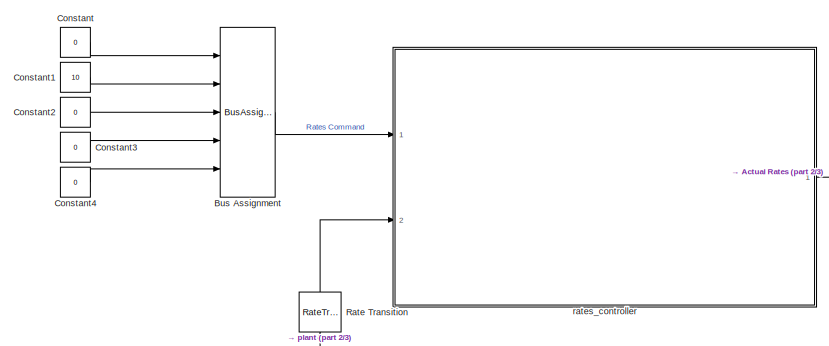
[diagram: root canvas - part 1/3, top left region]
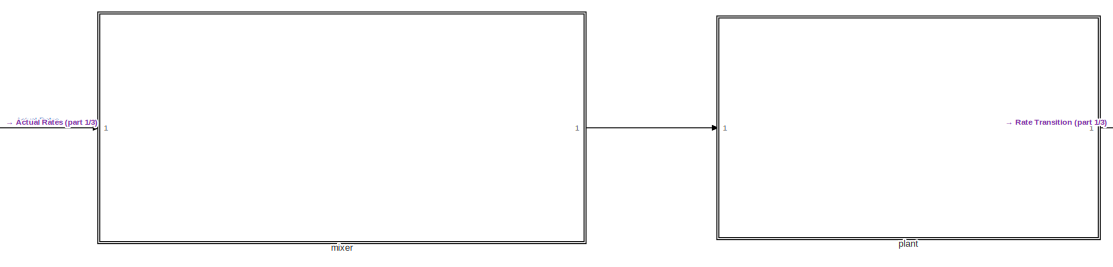
[diagram: root canvas - part 2/3, top right region]
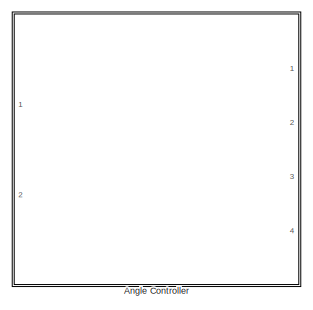
[diagram: root canvas - part 3/3, bottom center region]
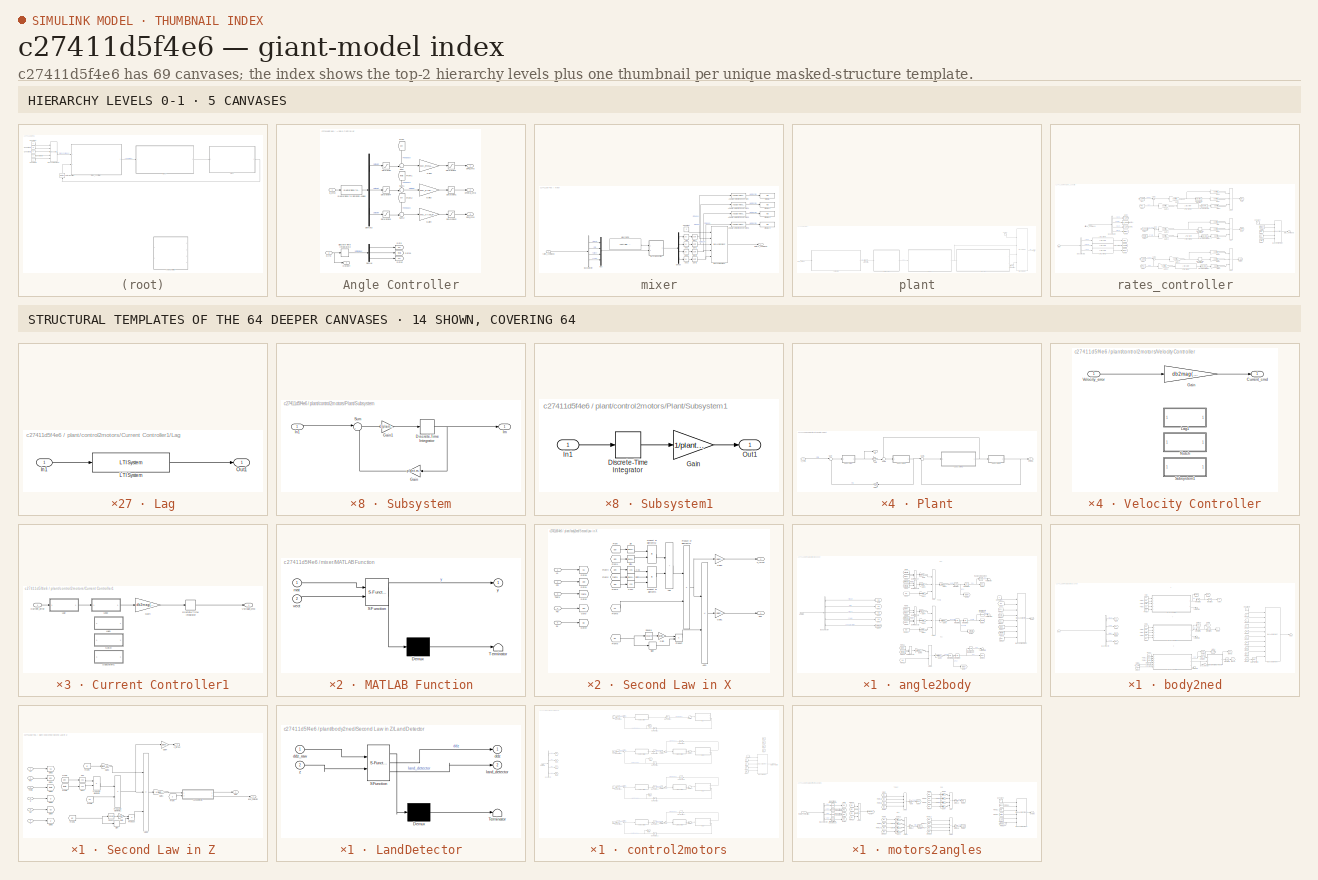
[diagram: thumbnail index - top-2 hierarchy levels (5 canvases) + 14 structural-template representatives of the remaining 64 canvases]
MODEL slx_c27411d5f4e6
KIND model
CONFIG AbsTol = auto
CONFIG EnableMultiTasking = off
CONFIG FixedStep = plant.motor.dynamic_time_sample/10
CONFIG MaxStep = auto
CONFIG MinStep = auto
CONFIG RelTol = 1e-3
CONFIG SampleTimeConstraint = Unconstrained
CONFIG SolverName = VariableStepAuto
CONFIG StartTime = 0.0
CONFIG StopTime = 10.0
BLOCK [SubSystem] Angle Controller
  Commented = on
  Ports = [2, 4]
  RequestExecContextInheritance = off
BLOCK [Demux] Angle Controller/Demux
  Outputs = 3
  Ports = [1, 3]
BLOCK [Demux] Angle Controller/Demux3
  Outputs = 3
  Ports = [1, 3]
BLOCK [DiscreteIntegrator] Angle Controller/Discrete-Time Integrator2
  ICPrevOutput = DiscIntNeverNeededParam
  ICPrevScaledInput = DiscIntNeverNeededParam
  InitialCondition = [0.001;0.001;0.001]
  InitialConditionSetting = Auto
  Ports = [1, 1]
  SampleTime = -1
BLOCK [From] Angle Controller/From
  GotoTag = phi
  NameLocation = left
BLOCK [From] Angle Controller/From1
  GotoTag = theta
  NameLocation = left
BLOCK [From] Angle Controller/From2
  GotoTag = psi
  NameLocation = left
BLOCK [Gain] Angle Controller/Gain1
  Gain = MC_ROLL_P
BLOCK [Gain] Angle Controller/Gain3
  Gain = MC_PITCH_P
BLOCK [Gain] Angle Controller/Gain4
  Gain = MC_YAW_P
BLOCK [Goto] Angle Controller/Goto
  GotoTag = phi
BLOCK [Goto] Angle Controller/Goto1
  GotoTag = theta
BLOCK [Goto] Angle Controller/Goto2
  GotoTag = psi
BLOCK [Inport] Angle Controller/Gyro
  Port = 2
BLOCK [Outport] Angle Controller/Outport
  Port = 4
BLOCK [Reference] Angle Controller/Quaternions to Rotation Angles  REF=sharedtransform/Quaternions to Rotation Angles
  AttributesFormatString = Rotation Order: %<rotationOrder>
  Ports = [1, 1]
  SourceBlock = sharedtransform/Quaternions to Rotation Angles
  SourceProductBaseCode = AE,PW,DR,MT,UV,VE
  SourceType = Quat2Ang
BLOCK [Saturate] Angle Controller/Saturation
  LowerLimit = -1.5
  UpperLimit = 1.5
BLOCK [Saturate] Angle Controller/Saturation1
  LowerLimit = -MC_PITCHRATE_MAX
  UpperLimit = MC_PITCHRATE_MAX
BLOCK [Saturate] Angle Controller/Saturation2
  LowerLimit = -MC_YAWRATE_MAX
  UpperLimit = MC_YAWRATE_MAX
BLOCK [Saturate] Angle Controller/Saturation3
  LowerLimit = -MC_ROLLRATE_MAX
  UpperLimit = MC_ROLLRATE_MAX
BLOCK [Saturate] Angle Controller/Saturation4
  LowerLimit = -1.5
  UpperLimit = 1.5
BLOCK [Saturate] Angle Controller/Saturation5
  LowerLimit = -1.5
  UpperLimit = 1.5
BLOCK [Sum] Angle Controller/Sum
  Inputs = -+|
  Ports = [2, 1]
BLOCK [Sum] Angle Controller/Sum1
  Inputs = -+|
  Ports = [2, 1]
BLOCK [Sum] Angle Controller/Sum2
  Inputs = -+|
  Ports = [2, 1]
BLOCK [Outport] Angle Controller/dPhi_cmd
BLOCK [Outport] Angle Controller/dPsi_cmd
  Port = 3
BLOCK [Outport] Angle Controller/dTheta_cmd
  Port = 2
BLOCK [Inport] Angle Controller/q_cmd
BLOCK [BusAssignment] Bus Assignment
  AssignedSignals = thrust,dphi,dtheta,dpsi
  Ports = [5, 1]
BLOCK [Constant] Constant
  OutDataTypeStr = Bus: AttitudeCommand
  Value = 0
BLOCK [Constant] Constant1
  Value = 10
BLOCK [Constant] Constant2
  Value = 0
BLOCK [Constant] Constant3
  Value = 0
BLOCK [Constant] Constant4
  Value = 0
BLOCK [RateTransition] Rate Transition
  NameLocation = right
  OutPortSampleTime = controller.rate.time_sample
BLOCK [SubSystem] mixer
  Ports = [1, 1]
  RequestExecContextInheritance = off
BLOCK [Abs] mixer/Abs
  SaturateOnIntegerOverflow = off
BLOCK [Abs] mixer/Abs1
  SaturateOnIntegerOverflow = off
BLOCK [Abs] mixer/Abs2
  SaturateOnIntegerOverflow = off
BLOCK [Abs] mixer/Abs3
  SaturateOnIntegerOverflow = off
BLOCK [Reference] mixer/Angular Velocity Conversion  REF=aerolibconvert2/Angular Velocity
Conversion
  Ports = [1, 1]
  SourceBlock = aerolibconvert2/Angular Velocity\nConversion
  SourceProductBaseCode = AE
  SourceType = Angular Velocity Conversion
BLOCK [Reference] mixer/Angular Velocity Conversion1  REF=aerolibconvert2/Angular Velocity
Conversion
  Ports = [1, 1]
  SourceBlock = aerolibconvert2/Angular Velocity\nConversion
  SourceProductBaseCode = AE
  SourceType = Angular Velocity Conversion
BLOCK [Reference] mixer/Angular Velocity Conversion2  REF=aerolibconvert2/Angular Velocity
Conversion
  Ports = [1, 1]
  SourceBlock = aerolibconvert2/Angular Velocity\nConversion
  SourceProductBaseCode = AE
  SourceType = Angular Velocity Conversion
BLOCK [Reference] mixer/Angular Velocity Conversion3  REF=aerolibconvert2/Angular Velocity
Conversion
  Ports = [1, 1]
  SourceBlock = aerolibconvert2/Angular Velocity\nConversion
  SourceProductBaseCode = AE
  SourceType = Angular Velocity Conversion
BLOCK [BusAssignment] mixer/Bus Assignment
  AssignedSignals = w1,w2,w3,w4
  Ports = [5, 1]
BLOCK [BusSelector] mixer/Bus Selector
  OutputSignals = thrust,roll,pitch,yaw
  Ports = [1, 4]
BLOCK [Constant] mixer/Constant
  OutDataTypeStr = Bus: MotorsCommand
  SampleTime = controller.rate.time_sample
  Value = 0
BLOCK [Demux] mixer/Demux
  Ports = [1, 4]
BLOCK [Display] mixer/Display
  Decimation = 1
  Ports = [1]
BLOCK [Display] mixer/Display1
  Decimation = 1
  Ports = [1]
BLOCK [Display] mixer/Display2
  Decimation = 1
  Ports = [1]
BLOCK [Display] mixer/Display3
  Decimation = 1
  Ports = [1]
BLOCK [SubSystem] mixer/MATLAB Function
  ErrorFcn = Stateflow.Translate.translate
  PermitHierarchicalResolution = ExplicitOnly
  Ports = [2, 1]
  RequestExecContextInheritance = off
  SFBlockType = MATLAB Function
  TreatAsAtomicUnit = on
BLOCK [Demux] mixer/MATLAB Function/ Demux 
  Outputs = 1
  Ports = [1, 1]
BLOCK [S-Function] mixer/MATLAB Function/ SFunction 
  EnableBusSupport = on
  FunctionName = sf_sfun
  PortCounts = [2 2]
  Ports = [2, 2]
  SFcnIsStateOwnerBlock = off
  SFunctionDeploymentMode = off
  Tag = Stateflow S-Function 8
BLOCK [Terminator] mixer/MATLAB Function/ Terminator 
BLOCK [Inport] mixer/MATLAB Function/mat
BLOCK [Inport] mixer/MATLAB Function/vect
  Port = 2
BLOCK [Outport] mixer/MATLAB Function/y
BLOCK [Constant] mixer/Mixer matrix
  NameLocation = top
  OutDataTypeStr = Inherit: Inherit via back propagation
  SampleTime = controller.rate.time_sample
  StartFcn = %p = Simulink.Mask.get('ControlsModels/Moments and Forces');\n\nCt = 0.025\nCq = 2e-6;\n\n%Ct = p.getParameter('Ct');\n%Cq =p.getParameter('Cq');\n\n%Ct = str2double(Ct.Value);\n%Cq = str2double(Cq.Value);
  Value = controller.mixer.matrix
BLOCK [Mux] mixer/Mux
  DisplayOption = bar
  Ports = [4, 1]
BLOCK [Sqrt] mixer/Sqrt
BLOCK [Sqrt] mixer/Sqrt1
BLOCK [Sqrt] mixer/Sqrt2
BLOCK [Sqrt] mixer/Sqrt3
BLOCK [Outport] mixer/motors_command
BLOCK [Inport] mixer/rates_command
  OutDataTypeStr = Bus: RatesCommand
BLOCK [SubSystem] plant
  Ports = [1, 1]
  RequestExecContextInheritance = off
BLOCK [BusAssignment] plant/Bus Assignment
  AssignedSignals = body,ned,land_detector
  Ports = [4, 1]
BLOCK [Constant] plant/Constant
  OutDataTypeStr = Bus: PlantState
  SampleTime = -1
  Value = 0
BLOCK [RateTransition] plant/Rate Transition
  OutPortSampleTime = 0
BLOCK [RateTransition] plant/Rate Transition1
  OutPortSampleTime = 0
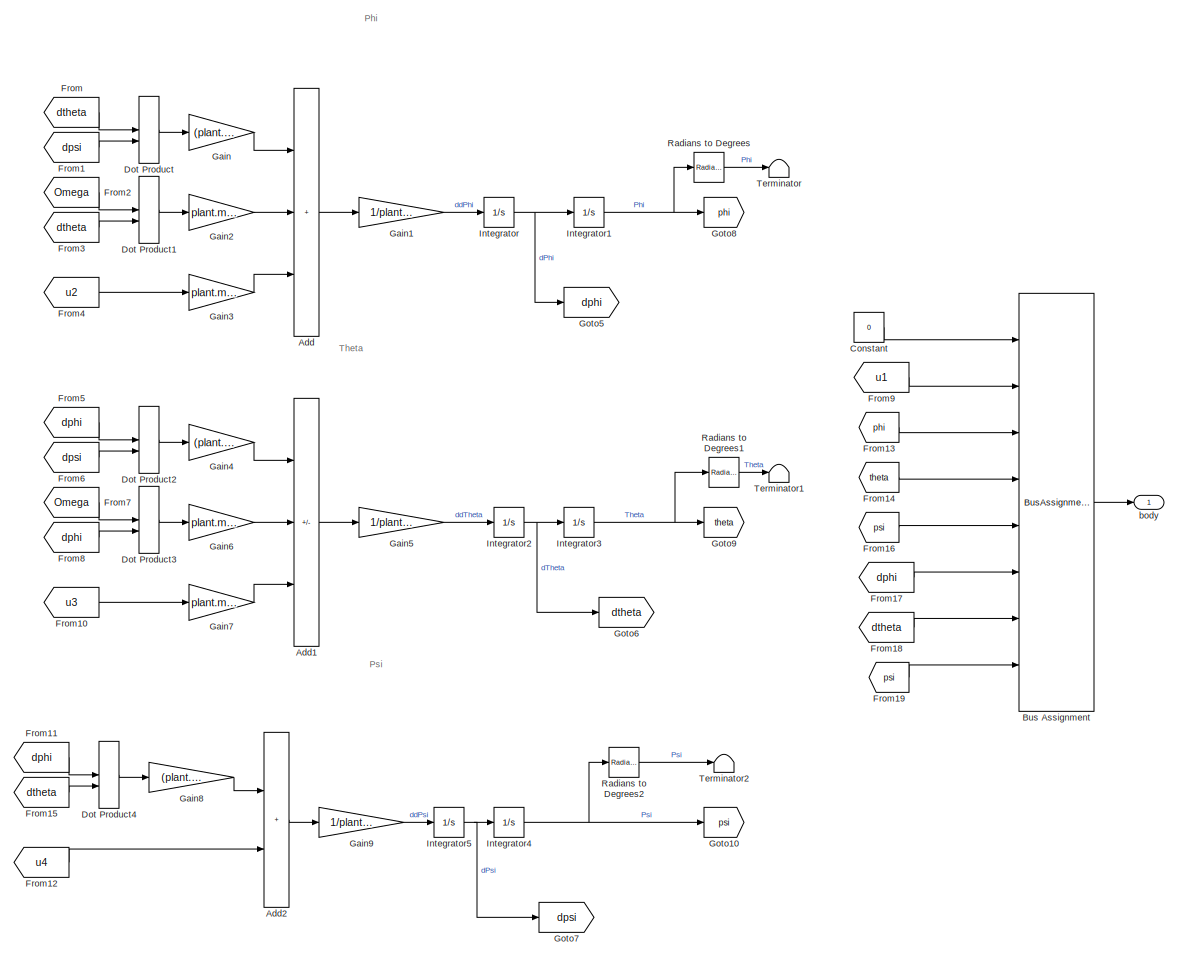
[diagram: plant/angle2body - part 1/2, right side, full height]
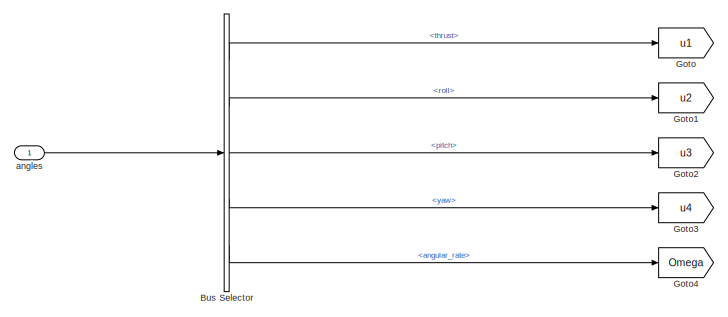
[diagram: plant/angle2body - part 2/2, middle left region]
BLOCK [SubSystem] plant/angle2body
  Ports = [1, 1]
  RequestExecContextInheritance = off
BLOCK [Sum] plant/angle2body/Add
  IconShape = rectangular
  Inputs = 3
  Ports = [3, 1]
BLOCK [Sum] plant/angle2body/Add1
  IconShape = rectangular
  Inputs = +-+
  Ports = [3, 1]
BLOCK [Sum] plant/angle2body/Add2
  IconShape = rectangular
  Inputs = 2
  Ports = [2, 1]
BLOCK [BusAssignment] plant/angle2body/Bus Assignment
  AssignedSignals = thrust,phi,theta,psi,dphi,dtheta,dpsi
  Ports = [8, 1]
BLOCK [BusSelector] plant/angle2body/Bus Selector
  OutputSignals = thrust,roll,pitch,yaw,angular_rate
  Ports = [1, 5]
BLOCK [Constant] plant/angle2body/Constant
  OutDataTypeStr = Bus: PlantBody
  SampleTime = -1
  Value = 0
BLOCK [DotProduct] plant/angle2body/Dot Product
  OutDataTypeStr = Inherit: Inherit via internal rule
BLOCK [DotProduct] plant/angle2body/Dot Product1
  OutDataTypeStr = Inherit: Inherit via internal rule
BLOCK [DotProduct] plant/angle2body/Dot Product2
  OutDataTypeStr = Inherit: Inherit via internal rule
BLOCK [DotProduct] plant/angle2body/Dot Product3
  OutDataTypeStr = Inherit: Inherit via internal rule
BLOCK [DotProduct] plant/angle2body/Dot Product4
  OutDataTypeStr = Inherit: Inherit via internal rule
BLOCK [From] plant/angle2body/From
  GotoTag = dtheta
BLOCK [From] plant/angle2body/From1
  GotoTag = dpsi
BLOCK [From] plant/angle2body/From10
  GotoTag = u3
BLOCK [From] plant/angle2body/From11
  GotoTag = dphi
BLOCK [From] plant/angle2body/From12
  GotoTag = u4
BLOCK [From] plant/angle2body/From13
  GotoTag = phi
BLOCK [From] plant/angle2body/From14
  GotoTag = theta
BLOCK [From] plant/angle2body/From15
  GotoTag = dtheta
BLOCK [From] plant/angle2body/From16
  GotoTag = psi
BLOCK [From] plant/angle2body/From17
  GotoTag = dphi
BLOCK [From] plant/angle2body/From18
  GotoTag = dtheta
BLOCK [From] plant/angle2body/From19
  GotoTag = psi
BLOCK [From] plant/angle2body/From2
  GotoTag = Omega
BLOCK [From] plant/angle2body/From3
  GotoTag = dtheta
BLOCK [From] plant/angle2body/From4
  GotoTag = u2
BLOCK [From] plant/angle2body/From5
  GotoTag = dphi
BLOCK [From] plant/angle2body/From6
  GotoTag = dpsi
BLOCK [From] plant/angle2body/From7
  GotoTag = Omega
BLOCK [From] plant/angle2body/From8
  GotoTag = dphi
BLOCK [From] plant/angle2body/From9
  GotoTag = u1
BLOCK [Gain] plant/angle2body/Gain
  Gain = (plant.mechanical.i_yy-plant.mechanical.i_zz)
BLOCK [Gain] plant/angle2body/Gain1
  Gain = 1/plant.mechanical.i_xx
BLOCK [Gain] plant/angle2body/Gain2
  Gain = plant.mechanical.j_l
BLOCK [Gain] plant/angle2body/Gain3
  Gain = plant.mechanical.d
BLOCK [Gain] plant/angle2body/Gain4
  Gain = (plant.mechanical.i_zz-plant.mechanical.i_xx)
BLOCK [Gain] plant/angle2body/Gain5
  Gain = 1/plant.mechanical.i_yy
BLOCK [Gain] plant/angle2body/Gain6
  Gain = plant.mechanical.j_l
BLOCK [Gain] plant/angle2body/Gain7
  Gain = plant.mechanical.d
BLOCK [Gain] plant/angle2body/Gain8
  Gain = (plant.mechanical.i_xx-plant.mechanical.i_yy)
BLOCK [Gain] plant/angle2body/Gain9
  Gain = 1/plant.mechanical.i_zz
BLOCK [Goto] plant/angle2body/Goto
  GotoTag = u1
BLOCK [Goto] plant/angle2body/Goto1
  GotoTag = u2
BLOCK [Goto] plant/angle2body/Goto10
  GotoTag = psi
BLOCK [Goto] plant/angle2body/Goto2
  GotoTag = u3
BLOCK [Goto] plant/angle2body/Goto3
  GotoTag = u4
BLOCK [Goto] plant/angle2body/Goto4
  GotoTag = Omega
BLOCK [Goto] plant/angle2body/Goto5
  GotoTag = dphi
BLOCK [Goto] plant/angle2body/Goto6
  GotoTag = dtheta
BLOCK [Goto] plant/angle2body/Goto7
  GotoTag = dpsi
BLOCK [Goto] plant/angle2body/Goto8
  GotoTag = phi
BLOCK [Goto] plant/angle2body/Goto9
  GotoTag = theta
BLOCK [Integrator] plant/angle2body/Integrator
  Ports = [1, 1]
BLOCK [Integrator] plant/angle2body/Integrator1
  Ports = [1, 1]
BLOCK [Integrator] plant/angle2body/Integrator2
  Ports = [1, 1]
BLOCK [Integrator] plant/angle2body/Integrator3
  Ports = [1, 1]
BLOCK [Integrator] plant/angle2body/Integrator4
  Ports = [1, 1]
BLOCK [Integrator] plant/angle2body/Integrator5
  Ports = [1, 1]
BLOCK [Reference] plant/angle2body/Radians to Degrees  REF=simulink_extras/Transformations/Radians
to Degrees
  Ports = [1, 1]
  SourceBlock = simulink_extras/Transformations/Radians\nto Degrees
  SourceProductBaseCode = SL
  SourceType = RadiansToDegrees
BLOCK [Reference] plant/angle2body/Radians to Degrees1  REF=simulink_extras/Transformations/Radians
to Degrees
  Ports = [1, 1]
  SourceBlock = simulink_extras/Transformations/Radians\nto Degrees
  SourceProductBaseCode = SL
  SourceType = RadiansToDegrees
BLOCK [Reference] plant/angle2body/Radians to Degrees2  REF=simulink_extras/Transformations/Radians
to Degrees
  Ports = [1, 1]
  SourceBlock = simulink_extras/Transformations/Radians\nto Degrees
  SourceProductBaseCode = SL
  SourceType = RadiansToDegrees
BLOCK [Terminator] plant/angle2body/Terminator
BLOCK [Terminator] plant/angle2body/Terminator1
BLOCK [Terminator] plant/angle2body/Terminator2
BLOCK [Inport] plant/angle2body/angles
  OutDataTypeStr = Bus: PlantAngles
BLOCK [Outport] plant/angle2body/body
  OutDataTypeStr = Bus: PlantBody
BLOCK [SubSystem] plant/body2ned
  Ports = [1, 2]
  RequestExecContextInheritance = off
BLOCK [BusAssignment] plant/body2ned/Bus Assignment
  AssignedSignals = x,y,z,vx,vy,vz,ax,ay,az
  Ports = [10, 1]
BLOCK [BusSelector] plant/body2ned/Bus Selector
  OutputSignals = thrust,phi,theta,psi
  Ports = [1, 4]
BLOCK [Constant] plant/body2ned/Constant1
  SampleTime = -1
  Value = plant.general.g
BLOCK [Constant] plant/body2ned/Constant2
  OutDataTypeStr = Bus: PlantNed
  Value = 0
BLOCK [From] plant/body2ned/From
  GotoTag = u1
BLOCK [From] plant/body2ned/From1
  GotoTag = phi
BLOCK [From] plant/body2ned/From10
  GotoTag = u1
BLOCK [From] plant/body2ned/From11
  GotoTag = phi
BLOCK [From] plant/body2ned/From12
  GotoTag = theta
BLOCK [From] plant/body2ned/From13
  GotoTag = dx
BLOCK [From] plant/body2ned/From14
  GotoTag = x
BLOCK [From] plant/body2ned/From15
  GotoTag = y
BLOCK [From] plant/body2ned/From16
  GotoTag = z
BLOCK [From] plant/body2ned/From17
  GotoTag = dx
BLOCK [From] plant/body2ned/From18
  GotoTag = dy
BLOCK [From] plant/body2ned/From19
  GotoTag = dz
BLOCK [From] plant/body2ned/From2
  GotoTag = theta
BLOCK [From] plant/body2ned/From20
  GotoTag = ddx
BLOCK [From] plant/body2ned/From21
  GotoTag = ddy
BLOCK [From] plant/body2ned/From22
  GotoTag = ddz
BLOCK [From] plant/body2ned/From23
  GotoTag = z
BLOCK [From] plant/body2ned/From3
  GotoTag = psi
BLOCK [From] plant/body2ned/From4
  GotoTag = dz_drag
BLOCK [From] plant/body2ned/From5
  GotoTag = u1
BLOCK [From] plant/body2ned/From6
  GotoTag = phi
BLOCK [From] plant/body2ned/From7
  GotoTag = theta
BLOCK [From] plant/body2ned/From8
  GotoTag = psi
BLOCK [From] plant/body2ned/From9
  GotoTag = dy
BLOCK [Goto] plant/body2ned/Goto
  GotoTag = u1
BLOCK [Goto] plant/body2ned/Goto1
  GotoTag = phi
BLOCK [Goto] plant/body2ned/Goto10
  GotoTag = ddy
BLOCK [Goto] plant/body2ned/Goto11
  GotoTag = ddz
BLOCK [Goto] plant/body2ned/Goto12
  GotoTag = z
BLOCK [Goto] plant/body2ned/Goto13
  GotoTag = dz
BLOCK [Goto] plant/body2ned/Goto2
  GotoTag = theta
BLOCK [Goto] plant/body2ned/Goto3
  GotoTag = psi
BLOCK [Goto] plant/body2ned/Goto4
  GotoTag = dz_drag
BLOCK [Goto] plant/body2ned/Goto5
  GotoTag = dy
BLOCK [Goto] plant/body2ned/Goto6
  GotoTag = dx
BLOCK [Goto] plant/body2ned/Goto7
  GotoTag = ddx
BLOCK [Goto] plant/body2ned/Goto8
  GotoTag = x
BLOCK [Goto] plant/body2ned/Goto9
  GotoTag = y
BLOCK [Integrator] plant/body2ned/Integrator
  InitialCondition = plant.ic.velocity.z
  Ports = [1, 1]
BLOCK [Integrator] plant/body2ned/Integrator1
  InitialCondition = plant.ic.velocity.y
  Ports = [1, 1]
BLOCK [Integrator] plant/body2ned/Integrator2
  InitialCondition = plant.ic.velocity.x
  Ports = [1, 1]
BLOCK [Integrator] plant/body2ned/Integrator3
  InitialCondition = plant.ic.position.x
  Ports = [1, 1]
BLOCK [Integrator] plant/body2ned/Integrator4
  InitialCondition = plant.ic.position.y
  Ports = [1, 1]
BLOCK [Integrator] plant/body2ned/Integrator5
  InitialCondition = plant.ic.position.z
  LimitOutput = on
  Ports = [1, 1]
  UpperSaturationLimit = 0
BLOCK [Outport] plant/body2ned/NED
  OutDataTypeStr = Bus: PlantNed
BLOCK [RateTransition] plant/body2ned/Rate Transition
  OutPortSampleTime = 0
BLOCK [SubSystem] plant/body2ned/Second Law in X
  Ports = [5, 2]
  RequestExecContextInheritance = off
BLOCK [Sum] plant/body2ned/Second Law in X/Add
  IconShape = rectangular
  Ports = [2, 1]
BLOCK [Sum] plant/body2ned/Second Law in X/Add1
  IconShape = rectangular
  Inputs = +-
  Ports = [2, 1]
BLOCK [Trigonometry] plant/body2ned/Second Law in X/Cos
  Operator = cos
  Ports = [1, 1]
BLOCK [Trigonometry] plant/body2ned/Second Law in X/Cos1
  Operator = cos
  Ports = [1, 1]
BLOCK [From] plant/body2ned/Second Law in X/From
  GotoTag = psi
BLOCK [From] plant/body2ned/Second Law in X/From1
  GotoTag = phi
BLOCK [From] plant/body2ned/Second Law in X/From2
  GotoTag = theta
BLOCK [From] plant/body2ned/Second Law in X/From3
  GotoTag = psi
BLOCK [From] plant/body2ned/Second Law in X/From4
  GotoTag = phi
BLOCK [From] plant/body2ned/Second Law in X/From5
  GotoTag = u1
BLOCK [From] plant/body2ned/Second Law in X/From6
  GotoTag = dx
BLOCK [Gain] plant/body2ned/Second Law in X/Gain
  Gain = plant.mechanical.a_x
BLOCK [Gain] plant/body2ned/Second Law in X/Gain1
  Gain = 1/plant.mechanical.m
BLOCK [Gain] plant/body2ned/Second Law in X/Gain2
  Gain = 1/plant.mechanical.m
BLOCK [Goto] plant/body2ned/Second Law in X/Goto
  GotoTag = psi
BLOCK [Goto] plant/body2ned/Second Law in X/Goto1
  GotoTag = phi
BLOCK [Goto] plant/body2ned/Second Law in X/Goto2
  GotoTag = theta
BLOCK [Goto] plant/body2ned/Second Law in X/Goto3
  GotoTag = u1
BLOCK [Goto] plant/body2ned/Second Law in X/Goto4
  GotoTag = dx
BLOCK [Inport] plant/body2ned/Second Law in X/Phi
  Port = 2
BLOCK [Product] plant/body2ned/Second Law in X/Product
  Ports = [2, 1]
BLOCK [Product] plant/body2ned/Second Law in X/Product of Elements
  Inputs = 3
  Ports = [3, 1]
BLOCK [Product] plant/body2ned/Second Law in X/Product of Elements1
  Ports = [2, 1]
BLOCK [Product] plant/body2ned/Second Law in X/Product of Elements2
  Ports = [2, 1]
BLOCK [Inport] plant/body2ned/Second Law in X/Psi
  Port = 4
BLOCK [Signum] plant/body2ned/Second Law in X/Sign
BLOCK [Trigonometry] plant/body2ned/Second Law in X/Sin
  Ports = [1, 1]
BLOCK [Trigonometry] plant/body2ned/Second Law in X/Sin1
  Ports = [1, 1]
BLOCK [Trigonometry] plant/body2ned/Second Law in X/Sin2
  Ports = [1, 1]
BLOCK [Math] plant/body2ned/Second Law in X/Square
  Operator = square
  Ports = [1, 1]
BLOCK [Inport] plant/body2ned/Second Law in X/Theta
  Port = 3
BLOCK [Outport] plant/body2ned/Second Law in X/ddx
BLOCK [Inport] plant/body2ned/Second Law in X/dx
  Port = 5
BLOCK [Inport] plant/body2ned/Second Law in X/u1
BLOCK [Outport] plant/body2ned/Second Law in X/x_thrust
  Port = 2
BLOCK [SubSystem] plant/body2ned/Second Law in Y
  Ports = [5, 2]
  RequestExecContextInheritance = off
BLOCK [Sum] plant/body2ned/Second Law in Y/Add
  IconShape = rectangular
  Inputs = -+
  Ports = [2, 1]
BLOCK [Sum] plant/body2ned/Second Law in Y/Add1
  IconShape = rectangular
  Inputs = +-
  Ports = [2, 1]
BLOCK [Trigonometry] plant/body2ned/Second Law in Y/Cos
  Operator = cos
  Ports = [1, 1]
BLOCK [Trigonometry] plant/body2ned/Second Law in Y/Cos1
  Ports = [1, 1]
BLOCK [From] plant/body2ned/Second Law in Y/From
  GotoTag = psi
BLOCK [From] plant/body2ned/Second Law in Y/From1
  GotoTag = phi
BLOCK [From] plant/body2ned/Second Law in Y/From2
  GotoTag = theta
BLOCK [From] plant/body2ned/Second Law in Y/From3
  GotoTag = psi
BLOCK [From] plant/body2ned/Second Law in Y/From4
  GotoTag = phi
BLOCK [From] plant/body2ned/Second Law in Y/From5
  GotoTag = u1
BLOCK [From] plant/body2ned/Second Law in Y/From6
  GotoTag = dy
BLOCK [Gain] plant/body2ned/Second Law in Y/Gain
  Gain = plant.mechanical.a_y
BLOCK [Gain] plant/body2ned/Second Law in Y/Gain1
  Gain = 1/plant.mechanical.m
BLOCK [Gain] plant/body2ned/Second Law in Y/Gain2
  Gain = 1/plant.mechanical.m
BLOCK [Goto] plant/body2ned/Second Law in Y/Goto
  GotoTag = psi
BLOCK [Goto] plant/body2ned/Second Law in Y/Goto1
  GotoTag = phi
BLOCK [Goto] plant/body2ned/Second Law in Y/Goto2
  GotoTag = theta
BLOCK [Goto] plant/body2ned/Second Law in Y/Goto3
  GotoTag = u1
BLOCK [Goto] plant/body2ned/Second Law in Y/Goto4
  GotoTag = dy
BLOCK [Inport] plant/body2ned/Second Law in Y/Phi
  Port = 2
BLOCK [Product] plant/body2ned/Second Law in Y/Product
  Ports = [2, 1]
BLOCK [Product] plant/body2ned/Second Law in Y/Product of Elements
  Inputs = 3
  Ports = [3, 1]
BLOCK [Product] plant/body2ned/Second Law in Y/Product of Elements1
  Ports = [2, 1]
BLOCK [Product] plant/body2ned/Second Law in Y/Product of Elements2
  Ports = [2, 1]
BLOCK [Inport] plant/body2ned/Second Law in Y/Psi
  Port = 4
BLOCK [Signum] plant/body2ned/Second Law in Y/Sign
BLOCK [Trigonometry] plant/body2ned/Second Law in Y/Sin
  Operator = cos
  Ports = [1, 1]
BLOCK [Trigonometry] plant/body2ned/Second Law in Y/Sin1
  Ports = [1, 1]
BLOCK [Trigonometry] plant/body2ned/Second Law in Y/Sin2
  Ports = [1, 1]
BLOCK [Math] plant/body2ned/Second Law in Y/Square
  Operator = square
  Ports = [1, 1]
BLOCK [Inport] plant/body2ned/Second Law in Y/Theta
  Port = 3
BLOCK [Outport] plant/body2ned/Second Law in Y/ddy
BLOCK [Inport] plant/body2ned/Second Law in Y/dy
  Port = 5
BLOCK [Inport] plant/body2ned/Second Law in Y/u1
BLOCK [Outport] plant/body2ned/Second Law in Y/y_thrust
  Port = 2
BLOCK [SubSystem] plant/body2ned/Second Law in Z
  Ports = [6, 3]
  RequestExecContextInheritance = off
BLOCK [Sum] plant/body2ned/Second Law in Z/Add1
  IconShape = rectangular
  Inputs = -+-
  Ports = [3, 1]
BLOCK [Trigonometry] plant/body2ned/Second Law in Z/Cos
  Operator = cos
  Ports = [1, 1]
BLOCK [Trigonometry] plant/body2ned/Second Law in Z/Cos1
  Operator = cos
  Ports = [1, 1]
BLOCK [From] plant/body2ned/Second Law in Z/From
  GotoTag = z
BLOCK [From] plant/body2ned/Second Law in Z/From1
  GotoTag = phi
BLOCK [From] plant/body2ned/Second Law in Z/From2
  GotoTag = theta
BLOCK [From] plant/body2ned/Second Law in Z/From3
  GotoTag = dz
BLOCK [From] plant/body2ned/Second Law in Z/From4
  GotoTag = g
BLOCK [From] plant/body2ned/Second Law in Z/From5
  GotoTag = u1
BLOCK [Gain] plant/body2ned/Second Law in Z/Gain
  Gain = plant.mechanical.a_z
BLOCK [Gain] plant/body2ned/Second Law in Z/Gain1
  Gain = 1/plant.mechanical.m
BLOCK [Gain] plant/body2ned/Second Law in Z/Gain3
  Gain = plant.mechanical.m
BLOCK [Gain] plant/body2ned/Second Law in Z/Gain4
  Gain = 1/plant.mechanical.m
BLOCK [Goto] plant/body2ned/Second Law in Z/Goto1
  GotoTag = phi
BLOCK [Goto] plant/body2ned/Second Law in Z/Goto2
  GotoTag = theta
BLOCK [Goto] plant/body2ned/Second Law in Z/Goto3
  GotoTag = u1
BLOCK [Goto] plant/body2ned/Second Law in Z/Goto4
  GotoTag = dz
BLOCK [Goto] plant/body2ned/Second Law in Z/Goto5
  GotoTag = z
BLOCK [Goto] plant/body2ned/Second Law in Z/Goto6
  GotoTag = g
BLOCK [SubSystem] plant/body2ned/Second Law in Z/LandDetector
  ErrorFcn = Stateflow.Translate.translate
  PermitHierarchicalResolution = ExplicitOnly
  Ports = [2, 2]
  RequestExecContextInheritance = off
  SFBlockType = MATLAB Function
  TreatAsAtomicUnit = on
BLOCK [Demux] plant/body2ned/Second Law in Z/LandDetector/ Demux 
  Outputs = 1
  Ports = [1, 1]
BLOCK [S-Function] plant/body2ned/Second Law in Z/LandDetector/ SFunction 
  EnableBusSupport = on
  FunctionName = sf_sfun
  PortCounts = [2 3]
  Ports = [2, 3]
  SFcnIsStateOwnerBlock = off
  SFunctionDeploymentMode = off
  Tag = Stateflow S-Function 2
BLOCK [Terminator] plant/body2ned/Second Law in Z/LandDetector/ Terminator 
BLOCK [Outport] plant/body2ned/Second Law in Z/LandDetector/ddz
BLOCK [Inport] plant/body2ned/Second Law in Z/LandDetector/ddz_raw
BLOCK [Outport] plant/body2ned/Second Law in Z/LandDetector/land_detector
  Port = 2
BLOCK [Inport] plant/body2ned/Second Law in Z/LandDetector/z
  Port = 2
BLOCK [Inport] plant/body2ned/Second Law in Z/Phi
  Port = 2
BLOCK [Product] plant/body2ned/Second Law in Z/Product
  Ports = [2, 1]
BLOCK [Product] plant/body2ned/Second Law in Z/Product of Elements
  Ports = [2, 1]
BLOCK [Product] plant/body2ned/Second Law in Z/Product of Elements1
  Ports = [2, 1]
BLOCK [Signum] plant/body2ned/Second Law in Z/Sign
BLOCK [Math] plant/body2ned/Second Law in Z/Square
  Operator = square
  Ports = [1, 1]
BLOCK [Inport] plant/body2ned/Second Law in Z/Theta
  Port = 3
BLOCK [Outport] plant/body2ned/Second Law in Z/ddz
BLOCK [Inport] plant/body2ned/Second Law in Z/dz
  Port = 5
BLOCK [Inport] plant/body2ned/Second Law in Z/g
  Port = 4
BLOCK [Outport] plant/body2ned/Second Law in Z/land_detector
  Port = 2
BLOCK [Inport] plant/body2ned/Second Law in Z/u1
BLOCK [Inport] plant/body2ned/Second Law in Z/z
  Port = 6
BLOCK [Outport] plant/body2ned/Second Law in Z/z_thrust
  Port = 3
BLOCK [Terminator] plant/body2ned/Terminator1
BLOCK [Terminator] plant/body2ned/Terminator2
BLOCK [Terminator] plant/body2ned/Terminator3
BLOCK [Inport] plant/body2ned/body
  OutDataTypeStr = Bus: PlantBody
BLOCK [Outport] plant/body2ned/land_detector
  OutDataTypeStr = boolean
  Port = 2
BLOCK [SubSystem] plant/body2ned/stop_integrate_velocity
  ErrorFcn = Stateflow.Translate.translate
  PermitHierarchicalResolution = ExplicitOnly
  Ports = [2, 1]
  RequestExecContextInheritance = off
  SFBlockType = MATLAB Function
  TreatAsAtomicUnit = on
BLOCK [Demux] plant/body2ned/stop_integrate_velocity/ Demux 
  Outputs = 1
  Ports = [1, 1]
BLOCK [S-Function] plant/body2ned/stop_integrate_velocity/ SFunction 
  EnableBusSupport = on
  FunctionName = sf_sfun
  PortCounts = [2 2]
  Ports = [2, 2]
  SFcnIsStateOwnerBlock = off
  SFunctionDeploymentMode = off
  Tag = Stateflow S-Function 1
BLOCK [Terminator] plant/body2ned/stop_integrate_velocity/ Terminator 
BLOCK [Inport] plant/body2ned/stop_integrate_velocity/land_detector
  Port = 2
BLOCK [Outport] plant/body2ned/stop_integrate_velocity/v
BLOCK [Inport] plant/body2ned/stop_integrate_velocity/vz_raw
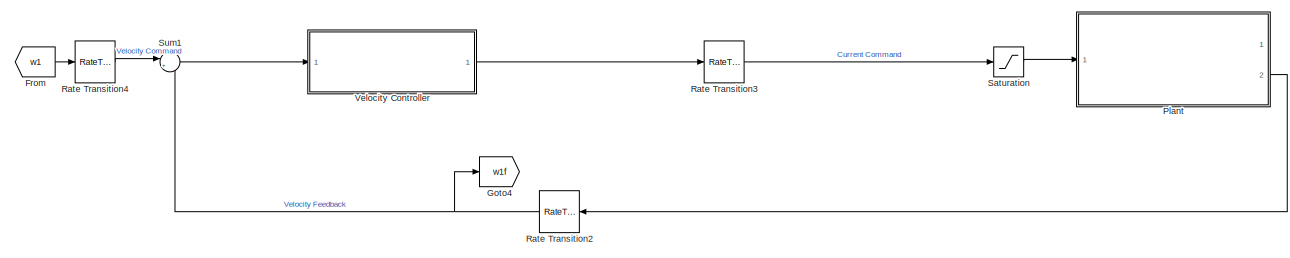
[diagram: plant/control2motors - part 1/5, top center region]
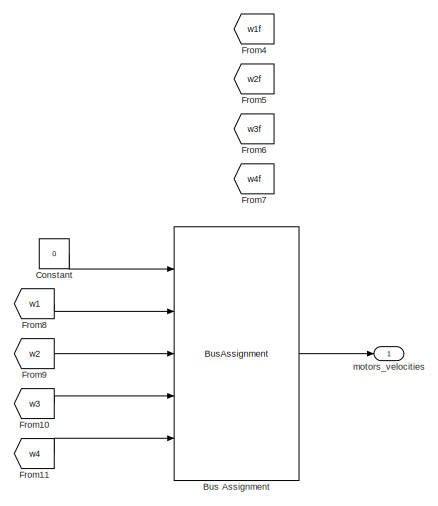
[diagram: plant/control2motors - part 2/5, middle right region]
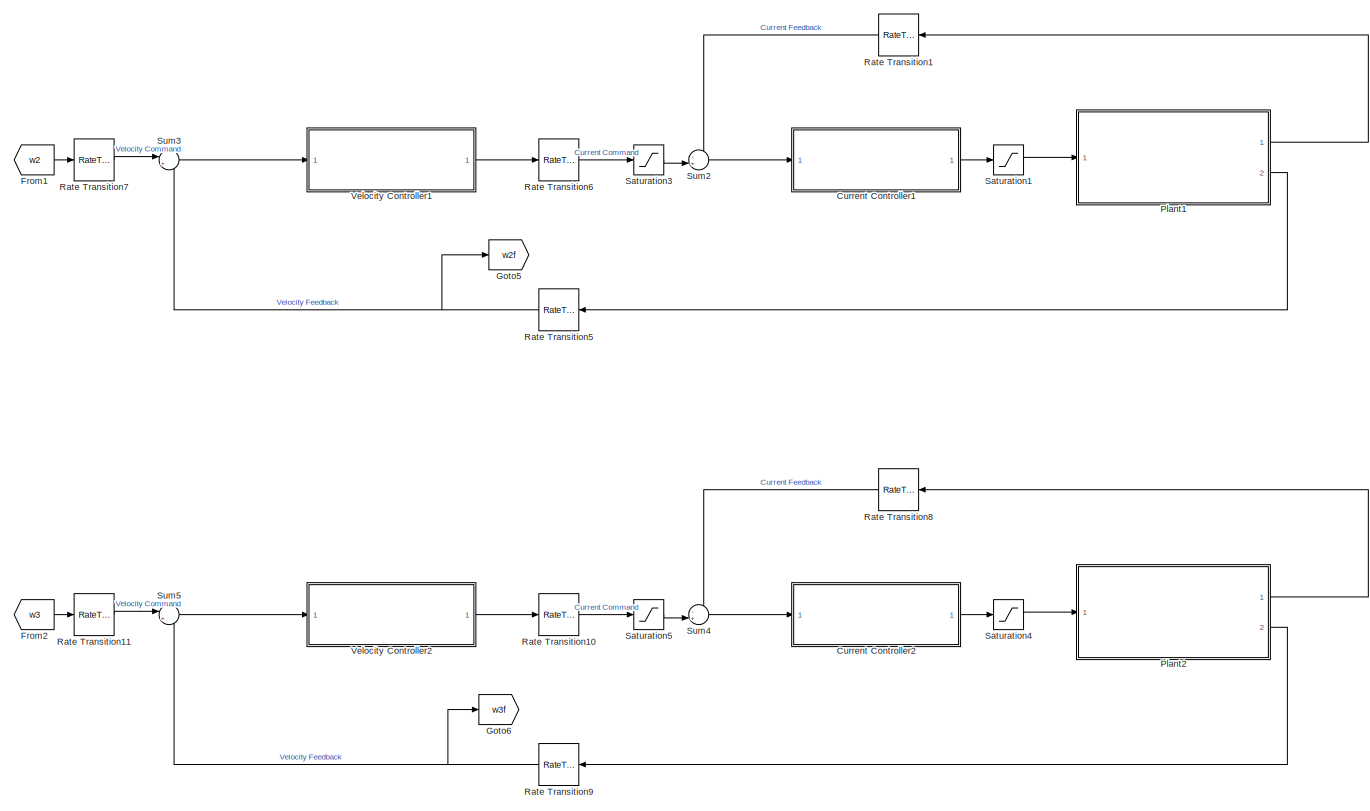
[diagram: plant/control2motors - part 3/5, central region]
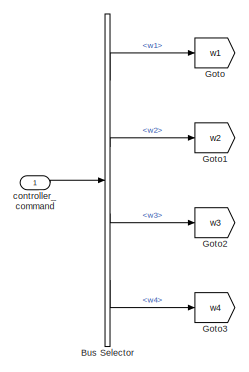
[diagram: plant/control2motors - part 4/5, middle left region]
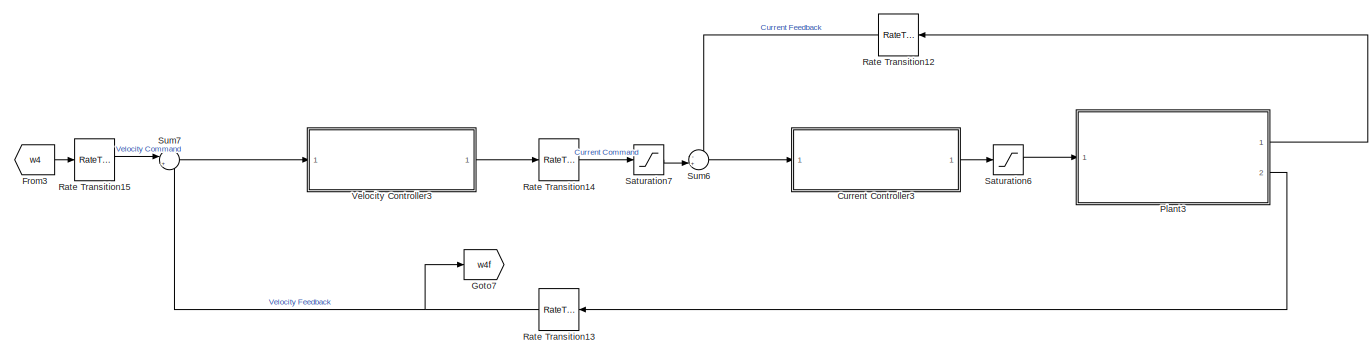
[diagram: plant/control2motors - part 5/5, bottom center region]
BLOCK [SubSystem] plant/control2motors
  Ports = [1, 1]
  RequestExecContextInheritance = off
BLOCK [BusAssignment] plant/control2motors/Bus Assignment
  AssignedSignals = w1,w2,w3,w4
  Ports = [5, 1]
BLOCK [BusSelector] plant/control2motors/Bus Selector
  OutputSignals = w1,w2,w3,w4
  Ports = [1, 4]
BLOCK [Constant] plant/control2motors/Constant
  OutDataTypeStr = Bus: PlantMotorsVelocity
  Value = 0
BLOCK [SubSystem] plant/control2motors/Current Controller1
  Commented = on
  Ports = [1, 1]
  RequestExecContextInheritance = off
BLOCK [Inport] plant/control2motors/Current Controller1/Current_error
BLOCK [DiscreteIntegrator] plant/control2motors/Current Controller1/Discrete-Time Integrator
  ICPrevOutput = DiscIntNeverNeededParam
  ICPrevScaledInput = DiscIntNeverNeededParam
  InitialConditionSetting = Auto
  Ports = [1, 1]
  SampleTime = plant.motor.electric_time_sample
BLOCK [Gain] plant/control2motors/Current Controller1/Gain
  Gain = db2mag(65)
BLOCK [SubSystem] plant/control2motors/Current Controller1/Lag
  Ports = [1, 1]
  RequestExecContextInheritance = off
BLOCK [Inport] plant/control2motors/Current Controller1/Lag/In1
BLOCK [Reference] plant/control2motors/Current Controller1/Lag/LTI System  REF=cstblocks/LTI System
  Ports = [1, 1]
  SourceBlock = cstblocks/LTI System
  SourceProductBaseCode = CT
  SourceType = LTI Block
BLOCK [Outport] plant/control2motors/Current Controller1/Lag/Out1
BLOCK [SubSystem] plant/control2motors/Current Controller1/Lag1
  Commented = on
  Ports = [1, 1]
  RequestExecContextInheritance = off
BLOCK [Inport] plant/control2motors/Current Controller1/Lag1/In1
BLOCK [Reference] plant/control2motors/Current Controller1/Lag1/LTI System  REF=cstblocks/LTI System
  Ports = [1, 1]
  SourceBlock = cstblocks/LTI System
  SourceProductBaseCode = CT
  SourceType = LTI Block
BLOCK [Outport] plant/control2motors/Current Controller1/Lag1/Out1
BLOCK [SubSystem] plant/control2motors/Current Controller1/Lead
  Ports = [1, 1]
  RequestExecContextInheritance = off
BLOCK [Inport] plant/control2motors/Current Controller1/Lead/In1
BLOCK [Reference] plant/control2motors/Current Controller1/Lead/LTI System  REF=cstblocks/LTI System
  Ports = [1, 1]
  SourceBlock = cstblocks/LTI System
  SourceProductBaseCode = CT
  SourceType = LTI Block
BLOCK [Outport] plant/control2motors/Current Controller1/Lead/Out1
BLOCK [SubSystem] plant/control2motors/Current Controller1/Notch
  Commented = on
  Ports = [1, 1]
  RequestExecContextInheritance = off
BLOCK [Inport] plant/control2motors/Current Controller1/Notch/In1
BLOCK [Reference] plant/control2motors/Current Controller1/Notch/LTI System  REF=cstblocks/LTI System
  Ports = [1, 1]
  SourceBlock = cstblocks/LTI System
  SourceProductBaseCode = CT
  SourceType = LTI Block
BLOCK [Outport] plant/control2motors/Current Controller1/Notch/Out1
BLOCK [SubSystem] plant/control2motors/Current Controller1/Subsystem1
  Commented = on
  Ports = [1, 1]
  RequestExecContextInheritance = off
BLOCK [Inport] plant/control2motors/Current Controller1/Subsystem1/In1
BLOCK [Reference] plant/control2motors/Current Controller1/Subsystem1/LTI System  REF=cstblocks/LTI System
  Ports = [1, 1]
  SourceBlock = cstblocks/LTI System
  SourceProductBaseCode = CT
  SourceType = LTI Block
BLOCK [Outport] plant/control2motors/Current Controller1/Subsystem1/Out1
BLOCK [Outport] plant/control2motors/Current Controller1/Voltage_cmd
BLOCK [SubSystem] plant/control2motors/Current Controller2
  Commented = on
  Ports = [1, 1]
  RequestExecContextInheritance = off
BLOCK [Inport] plant/control2motors/Current Controller2/Current_error
BLOCK [DiscreteIntegrator] plant/control2motors/Current Controller2/Discrete-Time Integrator
  ICPrevOutput = DiscIntNeverNeededParam
  ICPrevScaledInput = DiscIntNeverNeededParam
  InitialConditionSetting = Auto
  Ports = [1, 1]
  SampleTime = plant.motor.electric_time_sample
BLOCK [Gain] plant/control2motors/Current Controller2/Gain
  Gain = db2mag(65)
BLOCK [SubSystem] plant/control2motors/Current Controller2/Lag
  Ports = [1, 1]
  RequestExecContextInheritance = off
BLOCK [Inport] plant/control2motors/Current Controller2/Lag/In1
BLOCK [Reference] plant/control2motors/Current Controller2/Lag/LTI System  REF=cstblocks/LTI System
  Ports = [1, 1]
  SourceBlock = cstblocks/LTI System
  SourceProductBaseCode = CT
  SourceType = LTI Block
BLOCK [Outport] plant/control2motors/Current Controller2/Lag/Out1
BLOCK [SubSystem] plant/control2motors/Current Controller2/Lag1
  Commented = on
  Ports = [1, 1]
  RequestExecContextInheritance = off
BLOCK [Inport] plant/control2motors/Current Controller2/Lag1/In1
BLOCK [Reference] plant/control2motors/Current Controller2/Lag1/LTI System  REF=cstblocks/LTI System
  Ports = [1, 1]
  SourceBlock = cstblocks/LTI System
  SourceProductBaseCode = CT
  SourceType = LTI Block
BLOCK [Outport] plant/control2motors/Current Controller2/Lag1/Out1
BLOCK [SubSystem] plant/control2motors/Current Controller2/Lead
  Ports = [1, 1]
  RequestExecContextInheritance = off
BLOCK [Inport] plant/control2motors/Current Controller2/Lead/In1
BLOCK [Reference] plant/control2motors/Current Controller2/Lead/LTI System  REF=cstblocks/LTI System
  Ports = [1, 1]
  SourceBlock = cstblocks/LTI System
  SourceProductBaseCode = CT
  SourceType = LTI Block
BLOCK [Outport] plant/control2motors/Current Controller2/Lead/Out1
BLOCK [SubSystem] plant/control2motors/Current Controller2/Notch
  Commented = on
  Ports = [1, 1]
  RequestExecContextInheritance = off
BLOCK [Inport] plant/control2motors/Current Controller2/Notch/In1
BLOCK [Reference] plant/control2motors/Current Controller2/Notch/LTI System  REF=cstblocks/LTI System
  Ports = [1, 1]
  SourceBlock = cstblocks/LTI System
  SourceProductBaseCode = CT
  SourceType = LTI Block
BLOCK [Outport] plant/control2motors/Current Controller2/Notch/Out1
BLOCK [SubSystem] plant/control2motors/Current Controller2/Subsystem1
  Commented = on
  Ports = [1, 1]
  RequestExecContextInheritance = off
BLOCK [Inport] plant/control2motors/Current Controller2/Subsystem1/In1
BLOCK [Reference] plant/control2motors/Current Controller2/Subsystem1/LTI System  REF=cstblocks/LTI System
  Ports = [1, 1]
  SourceBlock = cstblocks/LTI System
  SourceProductBaseCode = CT
  SourceType = LTI Block
BLOCK [Outport] plant/control2motors/Current Controller2/Subsystem1/Out1
BLOCK [Outport] plant/control2motors/Current Controller2/Voltage_cmd
BLOCK [SubSystem] plant/control2motors/Current Controller3
  Commented = on
  Ports = [1, 1]
  RequestExecContextInheritance = off
BLOCK [Inport] plant/control2motors/Current Controller3/Current_error
BLOCK [DiscreteIntegrator] plant/control2motors/Current Controller3/Discrete-Time Integrator
  ICPrevOutput = DiscIntNeverNeededParam
  ICPrevScaledInput = DiscIntNeverNeededParam
  InitialConditionSetting = Auto
  Ports = [1, 1]
  SampleTime = plant.motor.electric_time_sample
BLOCK [Gain] plant/control2motors/Current Controller3/Gain
  Gain = db2mag(65)
BLOCK [SubSystem] plant/control2motors/Current Controller3/Lag
  Ports = [1, 1]
  RequestExecContextInheritance = off
BLOCK [Inport] plant/control2motors/Current Controller3/Lag/In1
BLOCK [Reference] plant/control2motors/Current Controller3/Lag/LTI System  REF=cstblocks/LTI System
  Ports = [1, 1]
  SourceBlock = cstblocks/LTI System
  SourceProductBaseCode = CT
  SourceType = LTI Block
BLOCK [Outport] plant/control2motors/Current Controller3/Lag/Out1
BLOCK [SubSystem] plant/control2motors/Current Controller3/Lag1
  Commented = on
  Ports = [1, 1]
  RequestExecContextInheritance = off
BLOCK [Inport] plant/control2motors/Current Controller3/Lag1/In1
BLOCK [Reference] plant/control2motors/Current Controller3/Lag1/LTI System  REF=cstblocks/LTI System
  Ports = [1, 1]
  SourceBlock = cstblocks/LTI System
  SourceProductBaseCode = CT
  SourceType = LTI Block
BLOCK [Outport] plant/control2motors/Current Controller3/Lag1/Out1
BLOCK [SubSystem] plant/control2motors/Current Controller3/Lead
  Ports = [1, 1]
  RequestExecContextInheritance = off
BLOCK [Inport] plant/control2motors/Current Controller3/Lead/In1
BLOCK [Reference] plant/control2motors/Current Controller3/Lead/LTI System  REF=cstblocks/LTI System
  Ports = [1, 1]
  SourceBlock = cstblocks/LTI System
  SourceProductBaseCode = CT
  SourceType = LTI Block
BLOCK [Outport] plant/control2motors/Current Controller3/Lead/Out1
BLOCK [SubSystem] plant/control2motors/Current Controller3/Notch
  Commented = on
  Ports = [1, 1]
  RequestExecContextInheritance = off
BLOCK [Inport] plant/control2motors/Current Controller3/Notch/In1
BLOCK [Reference] plant/control2motors/Current Controller3/Notch/LTI System  REF=cstblocks/LTI System
  Ports = [1, 1]
  SourceBlock = cstblocks/LTI System
  SourceProductBaseCode = CT
  SourceType = LTI Block
BLOCK [Outport] plant/control2motors/Current Controller3/Notch/Out1
BLOCK [SubSystem] plant/control2motors/Current Controller3/Subsystem1
  Commented = on
  Ports = [1, 1]
  RequestExecContextInheritance = off
BLOCK [Inport] plant/control2motors/Current Controller3/Subsystem1/In1
BLOCK [Reference] plant/control2motors/Current Controller3/Subsystem1/LTI System  REF=cstblocks/LTI System
  Ports = [1, 1]
  SourceBlock = cstblocks/LTI System
  SourceProductBaseCode = CT
  SourceType = LTI Block
BLOCK [Outport] plant/control2motors/Current Controller3/Subsystem1/Out1
BLOCK [Outport] plant/control2motors/Current Controller3/Voltage_cmd
BLOCK [From] plant/control2motors/From
  Commented = on
  GotoTag = w1
BLOCK [From] plant/control2motors/From1
  Commented = on
  GotoTag = w2
BLOCK [From] plant/control2motors/From10
  GotoTag = w3
BLOCK [From] plant/control2motors/From11
  GotoTag = w4
BLOCK [From] plant/control2motors/From2
  Commented = on
  GotoTag = w3
BLOCK [From] plant/control2motors/From3
  Commented = on
  GotoTag = w4
BLOCK [From] plant/control2motors/From4
  Commented = on
  GotoTag = w1f
BLOCK [From] plant/control2motors/From5
  Commented = on
  GotoTag = w2f
BLOCK [From] plant/control2motors/From6
  Commented = on
  GotoTag = w3f
BLOCK [From] plant/control2motors/From7
  Commented = on
  GotoTag = w4f
BLOCK [From] plant/control2motors/From8
  GotoTag = w1
BLOCK [From] plant/control2motors/From9
  GotoTag = w2
BLOCK [Goto] plant/control2motors/Goto
  GotoTag = w1
BLOCK [Goto] plant/control2motors/Goto1
  GotoTag = w2
BLOCK [Goto] plant/control2motors/Goto2
  GotoTag = w3
BLOCK [Goto] plant/control2motors/Goto3
  GotoTag = w4
BLOCK [Goto] plant/control2motors/Goto4
  Commented = on
  GotoTag = w1f
BLOCK [Goto] plant/control2motors/Goto5
  Commented = on
  GotoTag = w2f
BLOCK [Goto] plant/control2motors/Goto6
  Commented = on
  GotoTag = w3f
BLOCK [Goto] plant/control2motors/Goto7
  Commented = on
  GotoTag = w4f
BLOCK [SubSystem] plant/control2motors/Plant
  Commented = on
  Ports = [1, 2]
  RequestExecContextInheritance = off
BLOCK [Gain] plant/control2motors/Plant/Gain
  Gain = plant.motor.k_t
BLOCK [Gain] plant/control2motors/Plant/Gain1
  Gain = plant.motor.k_b
  NameLocation = top
BLOCK [Outport] plant/control2motors/Plant/Im
BLOCK [SubSystem] plant/control2motors/Plant/Subsystem
  Ports = [1, 1]
  RequestExecContextInheritance = off
BLOCK [DiscreteIntegrator] plant/control2motors/Plant/Subsystem/Discrete-Time Integrator
  ICPrevOutput = DiscIntNeverNeededParam
  ICPrevScaledInput = DiscIntNeverNeededParam
  InitialConditionSetting = Auto
  Ports = [1, 1]
  SampleTime = -1
BLOCK [Gain] plant/control2motors/Plant/Subsystem/Gain
  Gain = plant.motor.r
  NameLocation = top
BLOCK [Gain] plant/control2motors/Plant/Subsystem/Gain1
  Gain = 1/plant.motor.l
BLOCK [Outport] plant/control2motors/Plant/Subsystem/Im
BLOCK [Inport] plant/control2motors/Plant/Subsystem/In1
BLOCK [Sum] plant/control2motors/Plant/Subsystem/Sum
  Inputs = |+-
  Ports = [2, 1]
BLOCK [SubSystem] plant/control2motors/Plant/Subsystem1
  Ports = [1, 1]
  RequestExecContextInheritance = off
BLOCK [DiscreteIntegrator] plant/control2motors/Plant/Subsystem1/Discrete-Time Integrator
  ICPrevOutput = DiscIntNeverNeededParam
  ICPrevScaledInput = DiscIntNeverNeededParam
  InitialConditionSetting = Auto
  Ports = [1, 1]
  SampleTime = plant.motor.electric_time_sample
BLOCK [Gain] plant/control2motors/Plant/Subsystem1/Gain
  Gain = 1/plant.motor.j_m
BLOCK [Inport] plant/control2motors/Plant/Subsystem1/In1
BLOCK [Outport] plant/control2motors/Plant/Subsystem1/Out1
BLOCK [SubSystem] plant/control2motors/Plant/Subsystem2
  Ports = [1, 1]
  RequestExecContextInheritance = off
BLOCK [DiscreteIntegrator] plant/control2motors/Plant/Subsystem2/Discrete-Time Integrator
  ICPrevOutput = DiscIntNeverNeededParam
  ICPrevScaledInput = DiscIntNeverNeededParam
  InitialConditionSetting = Auto
  Ports = [1, 1]
  SampleTime = plant.motor.electric_time_sample
BLOCK [Gain] plant/control2motors/Plant/Subsystem2/Gain
  Gain = 1/plant.motor.j_l
BLOCK [Inport] plant/control2motors/Plant/Subsystem2/In1
BLOCK [Outport] plant/control2motors/Plant/Subsystem2/Out1
BLOCK [SubSystem] plant/control2motors/Plant/Subsystem3
  Ports = [1, 1]
  RequestExecContextInheritance = off
BLOCK [Sum] plant/control2motors/Plant/Subsystem3/Add
  IconShape = rectangular
  Ports = [2, 1]
BLOCK [DiscreteIntegrator] plant/control2motors/Plant/Subsystem3/Discrete-Time Integrator
  ICPrevOutput = DiscIntNeverNeededParam
  ICPrevScaledInput = DiscIntNeverNeededParam
  InitialConditionSetting = Auto
  Ports = [1, 1]
  SampleTime = plant.motor.electric_time_sample
BLOCK [Gain] plant/control2motors/Plant/Subsystem3/Gain2
  Gain = plant.motor.k_v
BLOCK [Gain] plant/control2motors/Plant/Subsystem3/Gain5
  Gain = plant.motor.k_k
BLOCK [Outport] plant/control2motors/Plant/Subsystem3/Tload
BLOCK [Inport] plant/control2motors/Plant/Subsystem3/dvel
BLOCK [Sum] plant/control2motors/Plant/Sum
  Inputs = |+-
  Ports = [2, 1]
BLOCK [Sum] plant/control2motors/Plant/Sum1
  Inputs = |+-
  Ports = [2, 1]
BLOCK [Sum] plant/control2motors/Plant/Sum2
  Inputs = -+|
  Ports = [2, 1]
BLOCK [Inport] plant/control2motors/Plant/V_cmd
BLOCK [Outport] plant/control2motors/Plant/omega
  Port = 2
BLOCK [SubSystem] plant/control2motors/Plant1
  Commented = on
  Ports = [1, 2]
  RequestExecContextInheritance = off
BLOCK [Gain] plant/control2motors/Plant1/Gain
  Gain = plant.motor.k_t
BLOCK [Gain] plant/control2motors/Plant1/Gain1
  Gain = plant.motor.k_b
  NameLocation = top
BLOCK [Outport] plant/control2motors/Plant1/Im
BLOCK [SubSystem] plant/control2motors/Plant1/Subsystem
  Ports = [1, 1]
  RequestExecContextInheritance = off
BLOCK [DiscreteIntegrator] plant/control2motors/Plant1/Subsystem/Discrete-Time Integrator
  ICPrevOutput = DiscIntNeverNeededParam
  ICPrevScaledInput = DiscIntNeverNeededParam
  InitialConditionSetting = Auto
  Ports = [1, 1]
  SampleTime = -1
BLOCK [Gain] plant/control2motors/Plant1/Subsystem/Gain
  Gain = plant.motor.r
  NameLocation = top
BLOCK [Gain] plant/control2motors/Plant1/Subsystem/Gain1
  Gain = 1/plant.motor.l
BLOCK [Outport] plant/control2motors/Plant1/Subsystem/Im
BLOCK [Inport] plant/control2motors/Plant1/Subsystem/In1
BLOCK [Sum] plant/control2motors/Plant1/Subsystem/Sum
  Inputs = |+-
  Ports = [2, 1]
BLOCK [SubSystem] plant/control2motors/Plant1/Subsystem1
  Ports = [1, 1]
  RequestExecContextInheritance = off
BLOCK [DiscreteIntegrator] plant/control2motors/Plant1/Subsystem1/Discrete-Time Integrator
  ICPrevOutput = DiscIntNeverNeededParam
  ICPrevScaledInput = DiscIntNeverNeededParam
  InitialConditionSetting = Auto
  Ports = [1, 1]
  SampleTime = plant.motor.electric_time_sample
BLOCK [Gain] plant/control2motors/Plant1/Subsystem1/Gain
  Gain = 1/plant.motor.j_m
BLOCK [Inport] plant/control2motors/Plant1/Subsystem1/In1
BLOCK [Outport] plant/control2motors/Plant1/Subsystem1/Out1
BLOCK [SubSystem] plant/control2motors/Plant1/Subsystem2
  Ports = [1, 1]
  RequestExecContextInheritance = off
BLOCK [DiscreteIntegrator] plant/control2motors/Plant1/Subsystem2/Discrete-Time Integrator
  ICPrevOutput = DiscIntNeverNeededParam
  ICPrevScaledInput = DiscIntNeverNeededParam
  InitialConditionSetting = Auto
  Ports = [1, 1]
  SampleTime = plant.motor.electric_time_sample
BLOCK [Gain] plant/control2motors/Plant1/Subsystem2/Gain
  Gain = 1/plant.motor.j_l
BLOCK [Inport] plant/control2motors/Plant1/Subsystem2/In1
BLOCK [Outport] plant/control2motors/Plant1/Subsystem2/Out1
BLOCK [SubSystem] plant/control2motors/Plant1/Subsystem3
  Ports = [1, 1]
  RequestExecContextInheritance = off
BLOCK [Sum] plant/control2motors/Plant1/Subsystem3/Add
  IconShape = rectangular
  Ports = [2, 1]
BLOCK [DiscreteIntegrator] plant/control2motors/Plant1/Subsystem3/Discrete-Time Integrator
  ICPrevOutput = DiscIntNeverNeededParam
  ICPrevScaledInput = DiscIntNeverNeededParam
  InitialConditionSetting = Auto
  Ports = [1, 1]
  SampleTime = plant.motor.electric_time_sample
BLOCK [Gain] plant/control2motors/Plant1/Subsystem3/Gain2
  Gain = plant.motor.k_v
BLOCK [Gain] plant/control2motors/Plant1/Subsystem3/Gain5
  Gain = plant.motor.k_k
BLOCK [Outport] plant/control2motors/Plant1/Subsystem3/Tload
BLOCK [Inport] plant/control2motors/Plant1/Subsystem3/dvel
BLOCK [Sum] plant/control2motors/Plant1/Sum
  Inputs = |+-
  Ports = [2, 1]
BLOCK [Sum] plant/control2motors/Plant1/Sum1
  Inputs = |+-
  Ports = [2, 1]
BLOCK [Sum] plant/control2motors/Plant1/Sum2
  Inputs = -+|
  Ports = [2, 1]
BLOCK [Inport] plant/control2motors/Plant1/V_cmd
BLOCK [Outport] plant/control2motors/Plant1/omega
  Port = 2
BLOCK [SubSystem] plant/control2motors/Plant2
  Commented = on
  Ports = [1, 2]
  RequestExecContextInheritance = off
BLOCK [Gain] plant/control2motors/Plant2/Gain
  Gain = plant.motor.k_t
BLOCK [Gain] plant/control2motors/Plant2/Gain1
  Gain = plant.motor.k_b
  NameLocation = top
BLOCK [Outport] plant/control2motors/Plant2/Im
BLOCK [SubSystem] plant/control2motors/Plant2/Subsystem
  Ports = [1, 1]
  RequestExecContextInheritance = off
BLOCK [DiscreteIntegrator] plant/control2motors/Plant2/Subsystem/Discrete-Time Integrator
  ICPrevOutput = DiscIntNeverNeededParam
  ICPrevScaledInput = DiscIntNeverNeededParam
  InitialConditionSetting = Auto
  Ports = [1, 1]
  SampleTime = -1
BLOCK [Gain] plant/control2motors/Plant2/Subsystem/Gain
  Gain = plant.motor.r
  NameLocation = top
BLOCK [Gain] plant/control2motors/Plant2/Subsystem/Gain1
  Gain = 1/plant.motor.l
BLOCK [Outport] plant/control2motors/Plant2/Subsystem/Im
BLOCK [Inport] plant/control2motors/Plant2/Subsystem/In1
BLOCK [Sum] plant/control2motors/Plant2/Subsystem/Sum
  Inputs = |+-
  Ports = [2, 1]
BLOCK [SubSystem] plant/control2motors/Plant2/Subsystem1
  Ports = [1, 1]
  RequestExecContextInheritance = off
BLOCK [DiscreteIntegrator] plant/control2motors/Plant2/Subsystem1/Discrete-Time Integrator
  ICPrevOutput = DiscIntNeverNeededParam
  ICPrevScaledInput = DiscIntNeverNeededParam
  InitialConditionSetting = Auto
  Ports = [1, 1]
  SampleTime = plant.motor.electric_time_sample
BLOCK [Gain] plant/control2motors/Plant2/Subsystem1/Gain
  Gain = 1/plant.motor.j_m
BLOCK [Inport] plant/control2motors/Plant2/Subsystem1/In1
BLOCK [Outport] plant/control2motors/Plant2/Subsystem1/Out1
BLOCK [SubSystem] plant/control2motors/Plant2/Subsystem2
  Ports = [1, 1]
  RequestExecContextInheritance = off
BLOCK [DiscreteIntegrator] plant/control2motors/Plant2/Subsystem2/Discrete-Time Integrator
  ICPrevOutput = DiscIntNeverNeededParam
  ICPrevScaledInput = DiscIntNeverNeededParam
  InitialConditionSetting = Auto
  Ports = [1, 1]
  SampleTime = plant.motor.electric_time_sample
BLOCK [Gain] plant/control2motors/Plant2/Subsystem2/Gain
  Gain = 1/plant.motor.j_l
BLOCK [Inport] plant/control2motors/Plant2/Subsystem2/In1
BLOCK [Outport] plant/control2motors/Plant2/Subsystem2/Out1
BLOCK [SubSystem] plant/control2motors/Plant2/Subsystem3
  Ports = [1, 1]
  RequestExecContextInheritance = off
BLOCK [Sum] plant/control2motors/Plant2/Subsystem3/Add
  IconShape = rectangular
  Ports = [2, 1]
BLOCK [DiscreteIntegrator] plant/control2motors/Plant2/Subsystem3/Discrete-Time Integrator
  ICPrevOutput = DiscIntNeverNeededParam
  ICPrevScaledInput = DiscIntNeverNeededParam
  InitialConditionSetting = Auto
  Ports = [1, 1]
  SampleTime = plant.motor.electric_time_sample
BLOCK [Gain] plant/control2motors/Plant2/Subsystem3/Gain2
  Gain = plant.motor.k_v
BLOCK [Gain] plant/control2motors/Plant2/Subsystem3/Gain5
  Gain = plant.motor.k_k
BLOCK [Outport] plant/control2motors/Plant2/Subsystem3/Tload
BLOCK [Inport] plant/control2motors/Plant2/Subsystem3/dvel
BLOCK [Sum] plant/control2motors/Plant2/Sum
  Inputs = |+-
  Ports = [2, 1]
BLOCK [Sum] plant/control2motors/Plant2/Sum1
  Inputs = |+-
  Ports = [2, 1]
BLOCK [Sum] plant/control2motors/Plant2/Sum2
  Inputs = -+|
  Ports = [2, 1]
BLOCK [Inport] plant/control2motors/Plant2/V_cmd
BLOCK [Outport] plant/control2motors/Plant2/omega
  Port = 2
BLOCK [SubSystem] plant/control2motors/Plant3
  Commented = on
  Ports = [1, 2]
  RequestExecContextInheritance = off
BLOCK [Gain] plant/control2motors/Plant3/Gain
  Gain = plant.motor.k_t
BLOCK [Gain] plant/control2motors/Plant3/Gain1
  Gain = plant.motor.k_b
  NameLocation = top
BLOCK [Outport] plant/control2motors/Plant3/Im
BLOCK [SubSystem] plant/control2motors/Plant3/Subsystem
  Ports = [1, 1]
  RequestExecContextInheritance = off
BLOCK [DiscreteIntegrator] plant/control2motors/Plant3/Subsystem/Discrete-Time Integrator
  ICPrevOutput = DiscIntNeverNeededParam
  ICPrevScaledInput = DiscIntNeverNeededParam
  InitialConditionSetting = Auto
  Ports = [1, 1]
  SampleTime = -1
BLOCK [Gain] plant/control2motors/Plant3/Subsystem/Gain
  Gain = plant.motor.r
  NameLocation = top
BLOCK [Gain] plant/control2motors/Plant3/Subsystem/Gain1
  Gain = 1/plant.motor.l
BLOCK [Outport] plant/control2motors/Plant3/Subsystem/Im
BLOCK [Inport] plant/control2motors/Plant3/Subsystem/In1
BLOCK [Sum] plant/control2motors/Plant3/Subsystem/Sum
  Inputs = |+-
  Ports = [2, 1]
BLOCK [SubSystem] plant/control2motors/Plant3/Subsystem1
  Ports = [1, 1]
  RequestExecContextInheritance = off
BLOCK [DiscreteIntegrator] plant/control2motors/Plant3/Subsystem1/Discrete-Time Integrator
  ICPrevOutput = DiscIntNeverNeededParam
  ICPrevScaledInput = DiscIntNeverNeededParam
  InitialConditionSetting = Auto
  Ports = [1, 1]
  SampleTime = plant.motor.electric_time_sample
BLOCK [Gain] plant/control2motors/Plant3/Subsystem1/Gain
  Gain = 1/plant.motor.j_m
BLOCK [Inport] plant/control2motors/Plant3/Subsystem1/In1
BLOCK [Outport] plant/control2motors/Plant3/Subsystem1/Out1
BLOCK [SubSystem] plant/control2motors/Plant3/Subsystem2
  Ports = [1, 1]
  RequestExecContextInheritance = off
BLOCK [DiscreteIntegrator] plant/control2motors/Plant3/Subsystem2/Discrete-Time Integrator
  ICPrevOutput = DiscIntNeverNeededParam
  ICPrevScaledInput = DiscIntNeverNeededParam
  InitialConditionSetting = Auto
  Ports = [1, 1]
  SampleTime = plant.motor.electric_time_sample
BLOCK [Gain] plant/control2motors/Plant3/Subsystem2/Gain
  Gain = 1/plant.motor.j_l
BLOCK [Inport] plant/control2motors/Plant3/Subsystem2/In1
BLOCK [Outport] plant/control2motors/Plant3/Subsystem2/Out1
BLOCK [SubSystem] plant/control2motors/Plant3/Subsystem3
  Ports = [1, 1]
  RequestExecContextInheritance = off
BLOCK [Sum] plant/control2motors/Plant3/Subsystem3/Add
  IconShape = rectangular
  Ports = [2, 1]
BLOCK [DiscreteIntegrator] plant/control2motors/Plant3/Subsystem3/Discrete-Time Integrator
  ICPrevOutput = DiscIntNeverNeededParam
  ICPrevScaledInput = DiscIntNeverNeededParam
  InitialConditionSetting = Auto
  Ports = [1, 1]
  SampleTime = plant.motor.electric_time_sample
BLOCK [Gain] plant/control2motors/Plant3/Subsystem3/Gain2
  Gain = plant.motor.k_v
BLOCK [Gain] plant/control2motors/Plant3/Subsystem3/Gain5
  Gain = plant.motor.k_k
BLOCK [Outport] plant/control2motors/Plant3/Subsystem3/Tload
BLOCK [Inport] plant/control2motors/Plant3/Subsystem3/dvel
BLOCK [Sum] plant/control2motors/Plant3/Sum
  Inputs = |+-
  Ports = [2, 1]
BLOCK [Sum] plant/control2motors/Plant3/Sum1
  Inputs = |+-
  Ports = [2, 1]
BLOCK [Sum] plant/control2motors/Plant3/Sum2
  Inputs = -+|
  Ports = [2, 1]
BLOCK [Inport] plant/control2motors/Plant3/V_cmd
BLOCK [Outport] plant/control2motors/Plant3/omega
  Port = 2
BLOCK [RateTransition] plant/control2motors/Rate Transition1
  Commented = on
  NameLocation = top
  OutPortSampleTime = plant.motor.electric_time_sample
BLOCK [RateTransition] plant/control2motors/Rate Transition10
  Commented = on
  NameLocation = top
  OutPortSampleTime = plant.motor.electric_time_sample
BLOCK [RateTransition] plant/control2motors/Rate Transition11
  Commented = on
  NameLocation = top
  OutPortSampleTime = plant.motor.dynamic_time_sample
BLOCK [RateTransition] plant/control2motors/Rate Transition12
  Commented = on
  NameLocation = top
  OutPortSampleTime = plant.motor.electric_time_sample
BLOCK [RateTransition] plant/control2motors/Rate Transition13
  Commented = on
  NameLocation = top
  OutPortSampleTime = plant.motor.dynamic_time_sample
BLOCK [RateTransition] plant/control2motors/Rate Transition14
  Commented = on
  NameLocation = top
  OutPortSampleTime = plant.motor.electric_time_sample
BLOCK [RateTransition] plant/control2motors/Rate Transition15
  Commented = on
  NameLocation = top
  OutPortSampleTime = plant.motor.dynamic_time_sample
BLOCK [RateTransition] plant/control2motors/Rate Transition2
  Commented = on
  NameLocation = top
  OutPortSampleTime = plant.motor.dynamic_time_sample
BLOCK [RateTransition] plant/control2motors/Rate Transition3
  Commented = on
  NameLocation = top
  OutPortSampleTime = plant.motor.electric_time_sample
BLOCK [RateTransition] plant/control2motors/Rate Transition4
  Commented = on
  NameLocation = top
  OutPortSampleTime = plant.motor.dynamic_time_sample
BLOCK [RateTransition] plant/control2motors/Rate Transition5
  Commented = on
  NameLocation = top
  OutPortSampleTime = plant.motor.dynamic_time_sample
BLOCK [RateTransition] plant/control2motors/Rate Transition6
  Commented = on
  NameLocation = top
  OutPortSampleTime = plant.motor.electric_time_sample
BLOCK [RateTransition] plant/control2motors/Rate Transition7
  Commented = on
  NameLocation = top
  OutPortSampleTime = plant.motor.dynamic_time_sample
BLOCK [RateTransition] plant/control2motors/Rate Transition8
  Commented = on
  NameLocation = top
  OutPortSampleTime = plant.motor.electric_time_sample
BLOCK [RateTransition] plant/control2motors/Rate Transition9
  Commented = on
  NameLocation = top
  OutPortSampleTime = plant.motor.dynamic_time_sample
BLOCK [Saturate] plant/control2motors/Saturation
  Commented = on
  LowerLimit = -plant.motor.max_v
  UpperLimit = plant.motor.max_v
BLOCK [Saturate] plant/control2motors/Saturation1
  Commented = on
  LowerLimit = -plant.motor.max_v
  UpperLimit = plant.motor.max_v
BLOCK [Saturate] plant/control2motors/Saturation3
  Commented = on
  LowerLimit = -plant.motor.max_i
  UpperLimit = plant.motor.max_i
BLOCK [Saturate] plant/control2motors/Saturation4
  Commented = on
  LowerLimit = -plant.motor.max_v
  UpperLimit = plant.motor.max_v
BLOCK [Saturate] plant/control2motors/Saturation5
  Commented = on
  LowerLimit = -plant.motor.max_i
  UpperLimit = plant.motor.max_i
BLOCK [Saturate] plant/control2motors/Saturation6
  Commented = on
  LowerLimit = -plant.motor.max_v
  UpperLimit = plant.motor.max_v
BLOCK [Saturate] plant/control2motors/Saturation7
  Commented = on
  LowerLimit = -plant.motor.max_i
  UpperLimit = plant.motor.max_i
BLOCK [Sum] plant/control2motors/Sum1
  Commented = on
  Inputs = |+-
  Ports = [2, 1]
BLOCK [Sum] plant/control2motors/Sum2
  Commented = on
  Inputs = -+|
  Ports = [2, 1]
BLOCK [Sum] plant/control2motors/Sum3
  Commented = on
  Inputs = |+-
  Ports = [2, 1]
BLOCK [Sum] plant/control2motors/Sum4
  Commented = on
  Inputs = -+|
  Ports = [2, 1]
BLOCK [Sum] plant/control2motors/Sum5
  Commented = on
  Inputs = |+-
  Ports = [2, 1]
BLOCK [Sum] plant/control2motors/Sum6
  Commented = on
  Inputs = -+|
  Ports = [2, 1]
BLOCK [Sum] plant/control2motors/Sum7
  Commented = on
  Inputs = |+-
  Ports = [2, 1]
BLOCK [SubSystem] plant/control2motors/Velocity Controller
  Commented = on
  Ports = [1, 1]
  RequestExecContextInheritance = off
BLOCK [Outport] plant/control2motors/Velocity Controller/Current_cmd
BLOCK [Gain] plant/control2motors/Velocity Controller/Gain
  Gain = db2mag(-42)
BLOCK [SubSystem] plant/control2motors/Velocity Controller/Lag1
  Commented = on
  Ports = [1, 1]
  RequestExecContextInheritance = off
BLOCK [Inport] plant/control2motors/Velocity Controller/Lag1/In1
BLOCK [Reference] plant/control2motors/Velocity Controller/Lag1/LTI System  REF=cstblocks/LTI System
  Ports = [1, 1]
  SourceBlock = cstblocks/LTI System
  SourceProductBaseCode = CT
  SourceType = LTI Block
BLOCK [Outport] plant/control2motors/Velocity Controller/Lag1/Out1
BLOCK [SubSystem] plant/control2motors/Velocity Controller/Notch
  Commented = on
  Ports = [1, 1]
  RequestExecContextInheritance = off
BLOCK [Inport] plant/control2motors/Velocity Controller/Notch/In1
BLOCK [Reference] plant/control2motors/Velocity Controller/Notch/LTI System  REF=cstblocks/LTI System
  Ports = [1, 1]
  SourceBlock = cstblocks/LTI System
  SourceProductBaseCode = CT
  SourceType = LTI Block
BLOCK [Outport] plant/control2motors/Velocity Controller/Notch/Out1
BLOCK [SubSystem] plant/control2motors/Velocity Controller/Subsystem1
  Commented = on
  Ports = [1, 1]
  RequestExecContextInheritance = off
BLOCK [Inport] plant/control2motors/Velocity Controller/Subsystem1/In1
BLOCK [Reference] plant/control2motors/Velocity Controller/Subsystem1/LTI System  REF=cstblocks/LTI System
  Ports = [1, 1]
  SourceBlock = cstblocks/LTI System
  SourceProductBaseCode = CT
  SourceType = LTI Block
BLOCK [Outport] plant/control2motors/Velocity Controller/Subsystem1/Out1
BLOCK [Inport] plant/control2motors/Velocity Controller/Velocity_error
BLOCK [SubSystem] plant/control2motors/Velocity Controller1
  Commented = on
  Ports = [1, 1]
  RequestExecContextInheritance = off
BLOCK [Outport] plant/control2motors/Velocity Controller1/Current_cmd
BLOCK [Gain] plant/control2motors/Velocity Controller1/Gain
  Gain = db2mag(-42)
BLOCK [SubSystem] plant/control2motors/Velocity Controller1/Lag1
  Commented = on
  Ports = [1, 1]
  RequestExecContextInheritance = off
BLOCK [Inport] plant/control2motors/Velocity Controller1/Lag1/In1
BLOCK [Reference] plant/control2motors/Velocity Controller1/Lag1/LTI System  REF=cstblocks/LTI System
  Ports = [1, 1]
  SourceBlock = cstblocks/LTI System
  SourceProductBaseCode = CT
  SourceType = LTI Block
BLOCK [Outport] plant/control2motors/Velocity Controller1/Lag1/Out1
BLOCK [SubSystem] plant/control2motors/Velocity Controller1/Notch
  Commented = on
  Ports = [1, 1]
  RequestExecContextInheritance = off
BLOCK [Inport] plant/control2motors/Velocity Controller1/Notch/In1
BLOCK [Reference] plant/control2motors/Velocity Controller1/Notch/LTI System  REF=cstblocks/LTI System
  Ports = [1, 1]
  SourceBlock = cstblocks/LTI System
  SourceProductBaseCode = CT
  SourceType = LTI Block
BLOCK [Outport] plant/control2motors/Velocity Controller1/Notch/Out1
BLOCK [SubSystem] plant/control2motors/Velocity Controller1/Subsystem1
  Commented = on
  Ports = [1, 1]
  RequestExecContextInheritance = off
BLOCK [Inport] plant/control2motors/Velocity Controller1/Subsystem1/In1
BLOCK [Reference] plant/control2motors/Velocity Controller1/Subsystem1/LTI System  REF=cstblocks/LTI System
  Ports = [1, 1]
  SourceBlock = cstblocks/LTI System
  SourceProductBaseCode = CT
  SourceType = LTI Block
BLOCK [Outport] plant/control2motors/Velocity Controller1/Subsystem1/Out1
BLOCK [Inport] plant/control2motors/Velocity Controller1/Velocity_error
BLOCK [SubSystem] plant/control2motors/Velocity Controller2
  Commented = on
  Ports = [1, 1]
  RequestExecContextInheritance = off
BLOCK [Outport] plant/control2motors/Velocity Controller2/Current_cmd
BLOCK [Gain] plant/control2motors/Velocity Controller2/Gain
  Gain = db2mag(-42)
BLOCK [SubSystem] plant/control2motors/Velocity Controller2/Lag1
  Commented = on
  Ports = [1, 1]
  RequestExecContextInheritance = off
BLOCK [Inport] plant/control2motors/Velocity Controller2/Lag1/In1
BLOCK [Reference] plant/control2motors/Velocity Controller2/Lag1/LTI System  REF=cstblocks/LTI System
  Ports = [1, 1]
  SourceBlock = cstblocks/LTI System
  SourceProductBaseCode = CT
  SourceType = LTI Block
BLOCK [Outport] plant/control2motors/Velocity Controller2/Lag1/Out1
BLOCK [SubSystem] plant/control2motors/Velocity Controller2/Notch
  Commented = on
  Ports = [1, 1]
  RequestExecContextInheritance = off
BLOCK [Inport] plant/control2motors/Velocity Controller2/Notch/In1
BLOCK [Reference] plant/control2motors/Velocity Controller2/Notch/LTI System  REF=cstblocks/LTI System
  Ports = [1, 1]
  SourceBlock = cstblocks/LTI System
  SourceProductBaseCode = CT
  SourceType = LTI Block
BLOCK [Outport] plant/control2motors/Velocity Controller2/Notch/Out1
BLOCK [SubSystem] plant/control2motors/Velocity Controller2/Subsystem1
  Commented = on
  Ports = [1, 1]
  RequestExecContextInheritance = off
BLOCK [Inport] plant/control2motors/Velocity Controller2/Subsystem1/In1
BLOCK [Reference] plant/control2motors/Velocity Controller2/Subsystem1/LTI System  REF=cstblocks/LTI System
  Ports = [1, 1]
  SourceBlock = cstblocks/LTI System
  SourceProductBaseCode = CT
  SourceType = LTI Block
BLOCK [Outport] plant/control2motors/Velocity Controller2/Subsystem1/Out1
BLOCK [Inport] plant/control2motors/Velocity Controller2/Velocity_error
BLOCK [SubSystem] plant/control2motors/Velocity Controller3
  Commented = on
  Ports = [1, 1]
  RequestExecContextInheritance = off
BLOCK [Outport] plant/control2motors/Velocity Controller3/Current_cmd
BLOCK [Gain] plant/control2motors/Velocity Controller3/Gain
  Gain = db2mag(-42)
BLOCK [SubSystem] plant/control2motors/Velocity Controller3/Lag1
  Commented = on
  Ports = [1, 1]
  RequestExecContextInheritance = off
BLOCK [Inport] plant/control2motors/Velocity Controller3/Lag1/In1
BLOCK [Reference] plant/control2motors/Velocity Controller3/Lag1/LTI System  REF=cstblocks/LTI System
  Ports = [1, 1]
  SourceBlock = cstblocks/LTI System
  SourceProductBaseCode = CT
  SourceType = LTI Block
BLOCK [Outport] plant/control2motors/Velocity Controller3/Lag1/Out1
BLOCK [SubSystem] plant/control2motors/Velocity Controller3/Notch
  Commented = on
  Ports = [1, 1]
  RequestExecContextInheritance = off
BLOCK [Inport] plant/control2motors/Velocity Controller3/Notch/In1
BLOCK [Reference] plant/control2motors/Velocity Controller3/Notch/LTI System  REF=cstblocks/LTI System
  Ports = [1, 1]
  SourceBlock = cstblocks/LTI System
  SourceProductBaseCode = CT
  SourceType = LTI Block
BLOCK [Outport] plant/control2motors/Velocity Controller3/Notch/Out1
BLOCK [SubSystem] plant/control2motors/Velocity Controller3/Subsystem1
  Commented = on
  Ports = [1, 1]
  RequestExecContextInheritance = off
BLOCK [Inport] plant/control2motors/Velocity Controller3/Subsystem1/In1
BLOCK [Reference] plant/control2motors/Velocity Controller3/Subsystem1/LTI System  REF=cstblocks/LTI System
  Ports = [1, 1]
  SourceBlock = cstblocks/LTI System
  SourceProductBaseCode = CT
  SourceType = LTI Block
BLOCK [Outport] plant/control2motors/Velocity Controller3/Subsystem1/Out1
BLOCK [Inport] plant/control2motors/Velocity Controller3/Velocity_error
BLOCK [Inport] plant/control2motors/controller_command
  OutDataTypeStr = Bus: MotorsCommand
BLOCK [Outport] plant/control2motors/motors_velocities
  OutDataTypeStr = Bus: PlantMotorsVelocity
BLOCK [SubSystem] plant/motors2angles
  Ports = [1, 1]
  RequestExecContextInheritance = off
BLOCK [Sum] plant/motors2angles/Add
  IconShape = rectangular
  Inputs = +--+
  Ports = [4, 1]
BLOCK [Sum] plant/motors2angles/Add1
  IconShape = rectangular
  Inputs = ++--
  Ports = [4, 1]
BLOCK [Sum] plant/motors2angles/Add2
  IconShape = rectangular
  Inputs = +-+-
  Ports = [4, 1]
BLOCK [Sum] plant/motors2angles/Add3
  IconShape = rectangular
  Inputs = 4
  Ports = [4, 1]
BLOCK [Sum] plant/motors2angles/Add4
  IconShape = rectangular
  Inputs = +-+-
  Ports = [4, 1]
BLOCK [BusAssignment] plant/motors2angles/Bus Assignment
  AssignedSignals = thrust,roll,pitch,yaw,angular_rate
  Ports = [6, 1]
BLOCK [BusSelector] plant/motors2angles/Bus Selector
  OutputSignals = w1,w2,w3,w4
  Ports = [1, 4]
BLOCK [Constant] plant/motors2angles/Constant
  OutDataTypeStr = Bus: PlantAngles
  Value = 0
BLOCK [From] plant/motors2angles/From
  GotoTag = w1
BLOCK [From] plant/motors2angles/From1
  GotoTag = w2
BLOCK [From] plant/motors2angles/From10
  GotoTag = w3
BLOCK [From] plant/motors2angles/From11
  GotoTag = w4
BLOCK [From] plant/motors2angles/From12
  GotoTag = w1
BLOCK [From] plant/motors2angles/From13
  GotoTag = w2
BLOCK [From] plant/motors2angles/From14
  GotoTag = w3
BLOCK [From] plant/motors2angles/From15
  GotoTag = w4
BLOCK [From] plant/motors2angles/From16
  GotoTag = w1
BLOCK [From] plant/motors2angles/From17
  GotoTag = w2
BLOCK [From] plant/motors2angles/From18
  GotoTag = w3
BLOCK [From] plant/motors2angles/From19
  GotoTag = w4
BLOCK [From] plant/motors2angles/From2
  GotoTag = w3
BLOCK [From] plant/motors2angles/From20
  GotoTag = thrust
BLOCK [From] plant/motors2angles/From21
  GotoTag = roll
BLOCK [From] plant/motors2angles/From22
  GotoTag = pitch
BLOCK [From] plant/motors2angles/From23
  GotoTag = yaw
BLOCK [From] plant/motors2angles/From24
  GotoTag = omega_r
BLOCK [From] plant/motors2angles/From3
  GotoTag = w4
BLOCK [From] plant/motors2angles/From4
  GotoTag = w1
BLOCK [From] plant/motors2angles/From5
  GotoTag = w2
BLOCK [From] plant/motors2angles/From6
  GotoTag = w3
BLOCK [From] plant/motors2angles/From7
  GotoTag = w4
BLOCK [From] plant/motors2angles/From8
  GotoTag = w1
BLOCK [From] plant/motors2angles/From9
  GotoTag = w2
BLOCK [Gain] plant/motors2angles/Gain
  Gain = plant.mechanical.c_t
BLOCK [Gain] plant/motors2angles/Gain1
  Gain = sqrt(2)/2
BLOCK [Gain] plant/motors2angles/Gain13
  Gain = plant.mechanical.c_t
BLOCK [Gain] plant/motors2angles/Gain17
  Gain = plant.mechanical.c_t
BLOCK [Gain] plant/motors2angles/Gain2
  Gain = sqrt(2)/2
BLOCK [Gain] plant/motors2angles/Gain22
  Gain = sqrt(2)/2
BLOCK [Gain] plant/motors2angles/Gain26
  Gain = plant.mechanical.c_q
BLOCK [Gain] plant/motors2angles/Gain3
  Gain = sqrt(2)/2
BLOCK [Gain] plant/motors2angles/Gain4
  Gain = sqrt(2)/2
BLOCK [Gain] plant/motors2angles/Gain5
  Gain = sqrt(2)/2
BLOCK [Gain] plant/motors2angles/Gain6
  Gain = sqrt(2)/2
BLOCK [Gain] plant/motors2angles/Gain7
  Gain = sqrt(2)/2
BLOCK [Goto] plant/motors2angles/Goto
  GotoTag = w1
BLOCK [Goto] plant/motors2angles/Goto1
  GotoTag = w2
BLOCK [Goto] plant/motors2angles/Goto2
  GotoTag = w3
BLOCK [Goto] plant/motors2angles/Goto3
  GotoTag = w4
BLOCK [Goto] plant/motors2angles/Goto4
  GotoTag = omega_r
BLOCK [Goto] plant/motors2angles/Goto5
  GotoTag = roll
BLOCK [Goto] plant/motors2angles/Goto6
  GotoTag = yaw
BLOCK [Goto] plant/motors2angles/Goto7
  GotoTag = thrust
BLOCK [Goto] plant/motors2angles/Goto8
  GotoTag = pitch
BLOCK [Math] plant/motors2angles/Magnitude Squared16
  Operator = magnitude^2
  Ports = [1, 1]
BLOCK [Math] plant/motors2angles/Magnitude Squared17
  Operator = magnitude^2
  Ports = [1, 1]
BLOCK [Math] plant/motors2angles/Magnitude Squared18
  Operator = magnitude^2
  Ports = [1, 1]
BLOCK [Math] plant/motors2angles/Magnitude Squared19
  Operator = magnitude^2
  Ports = [1, 1]
BLOCK [Outport] plant/motors2angles/angles
  OutDataTypeStr = Bus: PlantAngles
BLOCK [Inport] plant/motors2angles/motors_velocities
  OutDataTypeStr = Bus: PlantMotorsVelocity
BLOCK [Inport] plant/motors_command
  OutDataTypeStr = Bus: MotorsCommand
BLOCK [Outport] plant/state
  OutDataTypeStr = Bus: PlantState
BLOCK [SubSystem] rates_controller
  Ports = [2, 1]
  RequestExecContextInheritance = off
BLOCK [Sum] rates_controller/Add
  IconShape = rectangular
  Inputs = ++-
  Ports = [3, 1]
BLOCK [Sum] rates_controller/Add1
  IconShape = rectangular
  Inputs = ++-
  Ports = [3, 1]
BLOCK [Sum] rates_controller/Add2
  IconShape = rectangular
  Inputs = ++-
  Ports = [3, 1]
BLOCK [BusAssignment] rates_controller/Bus Assignment
  AssignedSignals = thrust,pitch,roll,yaw
  Ports = [5, 1]
BLOCK [BusSelector] rates_controller/Bus Selector
  OutputSignals = dphi,dtheta,dpsi,thrust
  Ports = [1, 4]
BLOCK [BusSelector] rates_controller/Bus Selector1
  OutputSignals = body.dphi,body.dtheta,body.dpsi
  Ports = [1, 3]
BLOCK [Constant] rates_controller/Constant
  OutDataTypeStr = Bus: RatesCommand
  Value = 0
BLOCK [Reference] rates_controller/Discrete Derivative  REF=simulink/Discrete/Discrete Derivative
  Ports = [1, 1]
  SourceBlock = simulink/Discrete/Discrete Derivative
  SourceProductBaseCode = SL
  SourceType = Discrete Derivative
BLOCK [Reference] rates_controller/Discrete Derivative1  REF=simulink/Discrete/Discrete Derivative
  Ports = [1, 1]
  SourceBlock = simulink/Discrete/Discrete Derivative
  SourceProductBaseCode = SL
  SourceType = Discrete Derivative
BLOCK [Reference] rates_controller/Discrete Derivative2  REF=simulink/Discrete/Discrete Derivative
  Ports = [1, 1]
  SourceBlock = simulink/Discrete/Discrete Derivative
  SourceProductBaseCode = SL
  SourceType = Discrete Derivative
BLOCK [DiscreteIntegrator] rates_controller/Discrete-Time Integrator1
  ICPrevOutput = DiscIntNeverNeededParam
  ICPrevScaledInput = DiscIntNeverNeededParam
  InitialConditionSetting = Auto
  LimitOutput = on
  LowerSaturationLimit = -controller.rate.mc_rr_int_limit
  Ports = [1, 1]
  SampleTime = controller.rate.time_sample
  UpperSaturationLimit = controller.rate.mc_rr_int_limit
BLOCK [DiscreteIntegrator] rates_controller/Discrete-Time Integrator2
  ICPrevOutput = DiscIntNeverNeededParam
  ICPrevScaledInput = DiscIntNeverNeededParam
  InitialConditionSetting = Auto
  LimitOutput = on
  LowerSaturationLimit = -controller.rate.mc_pr_int_limit
  Ports = [1, 1]
  SampleTime = controller.rate.time_sample
  UpperSaturationLimit = controller.rate.mc_pr_int_limit
BLOCK [DiscreteIntegrator] rates_controller/Discrete-Time Integrator3
  ICPrevOutput = DiscIntNeverNeededParam
  ICPrevScaledInput = DiscIntNeverNeededParam
  InitialConditionSetting = Auto
  LimitOutput = on
  LowerSaturationLimit = -controller.rate.mc_yr_int_limit
  Ports = [1, 1]
  SampleTime = controller.rate.time_sample
  UpperSaturationLimit = controller.rate.mc_yr_int_limit
BLOCK [From] rates_controller/From
  GotoTag = SP_dPhi
BLOCK [From] rates_controller/From1
  GotoTag = SP_dTheta
BLOCK [From] rates_controller/From2
  GotoTag = SP_dPsi
BLOCK [From] rates_controller/From3
  GotoTag = Phi
BLOCK [From] rates_controller/From4
  GotoTag = Theta
BLOCK [From] rates_controller/From5
  GotoTag = dPsi
BLOCK [From] rates_controller/From6
  GotoTag = roll
BLOCK [From] rates_controller/From7
  GotoTag = pitch
BLOCK [From] rates_controller/From8
  GotoTag = yaw
BLOCK [From] rates_controller/From9
  GotoTag = thrust
BLOCK [Gain] rates_controller/Gain
  Gain = controller.rate.pitch.p
BLOCK [Gain] rates_controller/Gain1
  Gain = controller.rate.pitch.i
BLOCK [Gain] rates_controller/Gain10
  Gain = controller.rate.pitch.k
BLOCK [Gain] rates_controller/Gain11
  Gain = controller.rate.yaw.k
BLOCK [Gain] rates_controller/Gain12
  Gain = controller.rate.roll.k
BLOCK [Gain] rates_controller/Gain13
  Gain = controller.rate.yaw.k
BLOCK [Gain] rates_controller/Gain14
  Gain = controller.rate.pitch.k
BLOCK [Gain] rates_controller/Gain2
  Gain = controller.rate.pitch.d
BLOCK [Gain] rates_controller/Gain3
  Gain = controller.rate.yaw.p
BLOCK [Gain] rates_controller/Gain4
  Gain = controller.rate.yaw.i
BLOCK [Gain] rates_controller/Gain5
  Gain = controller.rate.yaw.d
BLOCK [Gain] rates_controller/Gain6
  Gain = controller.rate.roll.p
BLOCK [Gain] rates_controller/Gain7
  Gain = controller.rate.roll.i
BLOCK [Gain] rates_controller/Gain8
  Gain = controller.rate.roll.d
BLOCK [Gain] rates_controller/Gain9
  Gain = controller.rate.roll.k
BLOCK [Goto] rates_controller/Goto
  GotoTag = roll
BLOCK [Goto] rates_controller/Goto1
  GotoTag = SP_dPsi
BLOCK [Goto] rates_controller/Goto2
  GotoTag = SP_dPhi
BLOCK [Goto] rates_controller/Goto3
  GotoTag = dPsi
BLOCK [Goto] rates_controller/Goto4
  GotoTag = SP_dTheta
BLOCK [Goto] rates_controller/Goto5
  GotoTag = Phi
BLOCK [Goto] rates_controller/Goto6
  GotoTag = Theta
BLOCK [Goto] rates_controller/Goto7
  GotoTag = pitch
BLOCK [Goto] rates_controller/Goto8
  GotoTag = yaw
BLOCK [Goto] rates_controller/Goto9
  GotoTag = thrust
BLOCK [Reference] rates_controller/LTI System1  REF=cstblocks/LTI System
  Ports = [1, 1]
  SourceBlock = cstblocks/LTI System
  SourceProductBaseCode = CT
  SourceType = LTI Block
BLOCK [Reference] rates_controller/LTI System2  REF=cstblocks/LTI System
  Ports = [1, 1]
  SourceBlock = cstblocks/LTI System
  SourceProductBaseCode = CT
  SourceType = LTI Block
BLOCK [Reference] rates_controller/LTI System3  REF=cstblocks/LTI System
  Ports = [1, 1]
  SourceBlock = cstblocks/LTI System
  SourceProductBaseCode = CT
  SourceType = LTI Block
BLOCK [Reference] rates_controller/LTI System5  REF=cstblocks/LTI System
  Ports = [1, 1]
  SourceBlock = cstblocks/LTI System
  SourceProductBaseCode = CT
  SourceType = LTI Block
BLOCK [Reference] rates_controller/LTI System6  REF=cstblocks/LTI System
  Ports = [1, 1]
  SourceBlock = cstblocks/LTI System
  SourceProductBaseCode = CT
  SourceType = LTI Block
BLOCK [Reference] rates_controller/LTI System7  REF=cstblocks/LTI System
  Ports = [1, 1]
  SourceBlock = cstblocks/LTI System
  SourceProductBaseCode = CT
  SourceType = LTI Block
BLOCK [Sum] rates_controller/Sum
  Inputs = |+-
  Ports = [2, 1]
BLOCK [Sum] rates_controller/Sum1
  Inputs = |+-
  Ports = [2, 1]
BLOCK [Sum] rates_controller/Sum2
  Inputs = |+-
  Ports = [2, 1]
BLOCK [Inport] rates_controller/attitude_command
  OutDataTypeStr = Bus: AttitudeCommand
BLOCK [Outport] rates_controller/rates_command
  OutDataTypeStr = Bus: RatesCommand
BLOCK [Inport] rates_controller/state
  OutDataTypeStr = Bus: PlantState
  Port = 2
ANNOTATION plant/angle2body: Phi
ANNOTATION plant/angle2body: Psi
ANNOTATION plant/angle2body: Theta
ANNOTATION plant/body2ned: X
ANNOTATION plant/body2ned: Y
ANNOTATION plant/body2ned: Z
ANNOTATION plant/motors2angles: Pitch
ANNOTATION plant/motors2angles: Roll
ANNOTATION plant/motors2angles: Thrust
LINE Angle Controller/Demux3:1 -> Angle Controller/Saturation:1
LINE Angle Controller/Demux3:2 -> Angle Controller/Saturation4:1
LINE Angle Controller/Demux3:3 -> Angle Controller/Saturation5:1
LINE Angle Controller/Demux:1 -> Angle Controller/Goto:1
LINE Angle Controller/Demux:2 -> Angle Controller/Goto1:1
LINE Angle Controller/Demux:3 -> Angle Controller/Goto2:1
LINE Angle Controller/Discrete-Time Integrator2:1 -> Angle Controller/Demux:1
LINE Angle Controller/From1:1 -> Angle Controller/Sum1:1
LINE Angle Controller/From2:1 -> Angle Controller/Sum2:1
LINE Angle Controller/From:1 -> Angle Controller/Sum:1
LINE Angle Controller/Gain1:1 -> Angle Controller/Saturation3:1
LINE Angle Controller/Gain3:1 -> Angle Controller/Saturation1:1
LINE Angle Controller/Gain4:1 -> Angle Controller/Saturation2:1
NET Angle Controller/Gyro:1 -> Angle Controller/Discrete-Time Integrator2:1, Angle Controller/Outport:1
LINE Angle Controller/Quaternions to Rotation Angles:1 -> Angle Controller/Demux3:1
LINE Angle Controller/Saturation1:1 -> Angle Controller/dTheta_cmd:1
LINE Angle Controller/Saturation2:1 -> Angle Controller/dPsi_cmd:1
LINE Angle Controller/Saturation3:1 -> Angle Controller/dPhi_cmd:1
LINE Angle Controller/Saturation4:1 -> Angle Controller/Sum1:2
LINE Angle Controller/Saturation5:1 -> Angle Controller/Sum2:2
LINE Angle Controller/Saturation:1 -> Angle Controller/Sum:2
LINE Angle Controller/Sum1:1 -> Angle Controller/Gain3:1
LINE Angle Controller/Sum2:1 -> Angle Controller/Gain4:1
LINE Angle Controller/Sum:1 -> Angle Controller/Gain1:1
LINE Angle Controller/q_cmd:1 -> Angle Controller/Quaternions to Rotation Angles:1
LINE Bus Assignment:1 -> rates_controller:1
LINE Constant1:1 -> Bus Assignment:2
LINE Constant2:1 -> Bus Assignment:3
LINE Constant3:1 -> Bus Assignment:4
LINE Constant4:1 -> Bus Assignment:5
LINE Constant:1 -> Bus Assignment:1
LINE Rate Transition:1 -> rates_controller:2
LINE mixer/Abs1:1 -> mixer/Sqrt1:1
LINE mixer/Abs2:1 -> mixer/Sqrt2:1
LINE mixer/Abs3:1 -> mixer/Sqrt3:1
LINE mixer/Abs:1 -> mixer/Sqrt:1
LINE mixer/Angular Velocity Conversion1:1 -> mixer/Display1:1
LINE mixer/Angular Velocity Conversion2:1 -> mixer/Display2:1
LINE mixer/Angular Velocity Conversion3:1 -> mixer/Display3:1
LINE mixer/Angular Velocity Conversion:1 -> mixer/Display:1
LINE mixer/Bus Assignment:1 -> mixer/motors_command:1
LINE mixer/Bus Selector:1 -> mixer/Mux:1
LINE mixer/Bus Selector:2 -> mixer/Mux:2
LINE mixer/Bus Selector:3 -> mixer/Mux:3
LINE mixer/Bus Selector:4 -> mixer/Mux:4
LINE mixer/Constant:1 -> mixer/Bus Assignment:1
LINE mixer/Demux:1 -> mixer/Abs:1
LINE mixer/Demux:2 -> mixer/Abs1:1
LINE mixer/Demux:3 -> mixer/Abs2:1
LINE mixer/Demux:4 -> mixer/Abs3:1
LINE mixer/MATLAB Function:1 -> mixer/Demux:1
LINE mixer/Mixer matrix:1 -> mixer/MATLAB Function:1
LINE mixer/Mux:1 -> mixer/MATLAB Function:2
NET mixer/Sqrt1:1 -> mixer/Angular Velocity Conversion1:1, mixer/Bus Assignment:3
NET mixer/Sqrt2:1 -> mixer/Angular Velocity Conversion2:1, mixer/Bus Assignment:4
NET mixer/Sqrt3:1 -> mixer/Angular Velocity Conversion3:1, mixer/Bus Assignment:5
NET mixer/Sqrt:1 -> mixer/Angular Velocity Conversion:1, mixer/Bus Assignment:2
LINE mixer/rates_command:1 -> mixer/Bus Selector:1
LINE mixer:1 -> plant:1
LINE plant/Bus Assignment:1 -> plant/state:1
LINE plant/Constant:1 -> plant/Bus Assignment:1
LINE plant/Rate Transition1:1 -> plant/Bus Assignment:4
LINE plant/Rate Transition:1 -> plant/motors2angles:1
LINE plant/angle2body/Add1:1 -> plant/angle2body/Gain5:1
LINE plant/angle2body/Add2:1 -> plant/angle2body/Gain9:1
LINE plant/angle2body/Add:1 -> plant/angle2body/Gain1:1
LINE plant/angle2body/Bus Assignment:1 -> plant/angle2body/body:1
LINE plant/angle2body/Bus Selector:1 -> plant/angle2body/Goto:1
LINE plant/angle2body/Bus Selector:2 -> plant/angle2body/Goto1:1
LINE plant/angle2body/Bus Selector:3 -> plant/angle2body/Goto2:1
LINE plant/angle2body/Bus Selector:4 -> plant/angle2body/Goto3:1
LINE plant/angle2body/Bus Selector:5 -> plant/angle2body/Goto4:1
LINE plant/angle2body/Constant:1 -> plant/angle2body/Bus Assignment:1
LINE plant/angle2body/Dot Product1:1 -> plant/angle2body/Gain2:1
LINE plant/angle2body/Dot Product2:1 -> plant/angle2body/Gain4:1
LINE plant/angle2body/Dot Product3:1 -> plant/angle2body/Gain6:1
LINE plant/angle2body/Dot Product4:1 -> plant/angle2body/Gain8:1
LINE plant/angle2body/Dot Product:1 -> plant/angle2body/Gain:1
LINE plant/angle2body/From10:1 -> plant/angle2body/Gain7:1
LINE plant/angle2body/From11:1 -> plant/angle2body/Dot Product4:1
LINE plant/angle2body/From12:1 -> plant/angle2body/Add2:2
LINE plant/angle2body/From13:1 -> plant/angle2body/Bus Assignment:3
LINE plant/angle2body/From14:1 -> plant/angle2body/Bus Assignment:4
LINE plant/angle2body/From15:1 -> plant/angle2body/Dot Product4:2
LINE plant/angle2body/From16:1 -> plant/angle2body/Bus Assignment:5
LINE plant/angle2body/From17:1 -> plant/angle2body/Bus Assignment:6
LINE plant/angle2body/From18:1 -> plant/angle2body/Bus Assignment:7
LINE plant/angle2body/From19:1 -> plant/angle2body/Bus Assignment:8
LINE plant/angle2body/From1:1 -> plant/angle2body/Dot Product:2
LINE plant/angle2body/From2:1 -> plant/angle2body/Dot Product1:1
LINE plant/angle2body/From3:1 -> plant/angle2body/Dot Product1:2
LINE plant/angle2body/From4:1 -> plant/angle2body/Gain3:1
LINE plant/angle2body/From5:1 -> plant/angle2body/Dot Product2:1
LINE plant/angle2body/From6:1 -> plant/angle2body/Dot Product2:2
LINE plant/angle2body/From7:1 -> plant/angle2body/Dot Product3:1
LINE plant/angle2body/From8:1 -> plant/angle2body/Dot Product3:2
LINE plant/angle2body/From9:1 -> plant/angle2body/Bus Assignment:2
LINE plant/angle2body/From:1 -> plant/angle2body/Dot Product:1
LINE plant/angle2body/Gain1:1 -> plant/angle2body/Integrator:1
LINE plant/angle2body/Gain2:1 -> plant/angle2body/Add:2
LINE plant/angle2body/Gain3:1 -> plant/angle2body/Add:3
LINE plant/angle2body/Gain4:1 -> plant/angle2body/Add1:1
LINE plant/angle2body/Gain5:1 -> plant/angle2body/Integrator2:1
LINE plant/angle2body/Gain6:1 -> plant/angle2body/Add1:2
LINE plant/angle2body/Gain7:1 -> plant/angle2body/Add1:3
LINE plant/angle2body/Gain8:1 -> plant/angle2body/Add2:1
LINE plant/angle2body/Gain9:1 -> plant/angle2body/Integrator5:1
LINE plant/angle2body/Gain:1 -> plant/angle2body/Add:1
NET plant/angle2body/Integrator1:1 -> plant/angle2body/Goto8:1, plant/angle2body/Radians to Degrees:1
NET plant/angle2body/Integrator2:1 -> plant/angle2body/Goto6:1, plant/angle2body/Integrator3:1
NET plant/angle2body/Integrator3:1 -> plant/angle2body/Goto9:1, plant/angle2body/Radians to Degrees1:1
NET plant/angle2body/Integrator4:1 -> plant/angle2body/Goto10:1, plant/angle2body/Radians to Degrees2:1
NET plant/angle2body/Integrator5:1 -> plant/angle2body/Goto7:1, plant/angle2body/Integrator4:1
NET plant/angle2body/Integrator:1 -> plant/angle2body/Goto5:1, plant/angle2body/Integrator1:1
LINE plant/angle2body/Radians to Degrees1:1 -> plant/angle2body/Terminator1:1
LINE plant/angle2body/Radians to Degrees2:1 -> plant/angle2body/Terminator2:1
LINE plant/angle2body/Radians to Degrees:1 -> plant/angle2body/Terminator:1
LINE plant/angle2body/angles:1 -> plant/angle2body/Bus Selector:1
NET plant/angle2body:1 -> plant/Bus Assignment:2, plant/body2ned:1
LINE plant/body2ned/Bus Assignment:1 -> plant/body2ned/NED:1
LINE plant/body2ned/Bus Selector:1 -> plant/body2ned/Goto:1
LINE plant/body2ned/Bus Selector:2 -> plant/body2ned/Goto1:1
LINE plant/body2ned/Bus Selector:3 -> plant/body2ned/Goto2:1
LINE plant/body2ned/Bus Selector:4 -> plant/body2ned/Goto3:1
LINE plant/body2ned/Constant1:1 -> plant/body2ned/Second Law in Z:4
LINE plant/body2ned/Constant2:1 -> plant/body2ned/Bus Assignment:1
LINE plant/body2ned/From10:1 -> plant/body2ned/Second Law in Z:1
LINE plant/body2ned/From11:1 -> plant/body2ned/Second Law in Z:2
LINE plant/body2ned/From12:1 -> plant/body2ned/Second Law in Z:3
LINE plant/body2ned/From13:1 -> plant/body2ned/Second Law in X:5
LINE plant/body2ned/From14:1 -> plant/body2ned/Bus Assignment:2
LINE plant/body2ned/From15:1 -> plant/body2ned/Bus Assignment:3
LINE plant/body2ned/From16:1 -> plant/body2ned/Bus Assignment:4
LINE plant/body2ned/From17:1 -> plant/body2ned/Bus Assignment:5
LINE plant/body2ned/From18:1 -> plant/body2ned/Bus Assignment:6
LINE plant/body2ned/From19:1 -> plant/body2ned/Bus Assignment:7
LINE plant/body2ned/From1:1 -> plant/body2ned/Second Law in X:2
LINE plant/body2ned/From20:1 -> plant/body2ned/Bus Assignment:8
LINE plant/body2ned/From21:1 -> plant/body2ned/Bus Assignment:9
LINE plant/body2ned/From22:1 -> plant/body2ned/Rate Transition:1
LINE plant/body2ned/From23:1 -> plant/body2ned/Second Law in Z:6
LINE plant/body2ned/From2:1 -> plant/body2ned/Second Law in X:3
LINE plant/body2ned/From3:1 -> plant/body2ned/Second Law in X:4
LINE plant/body2ned/From4:1 -> plant/body2ned/Second Law in Z:5
LINE plant/body2ned/From5:1 -> plant/body2ned/Second Law in Y:1
LINE plant/body2ned/From6:1 -> plant/body2ned/Second Law in Y:2
LINE plant/body2ned/From7:1 -> plant/body2ned/Second Law in Y:3
LINE plant/body2ned/From8:1 -> plant/body2ned/Second Law in Y:4
LINE plant/body2ned/From9:1 -> plant/body2ned/Second Law in Y:5
LINE plant/body2ned/From:1 -> plant/body2ned/Second Law in X:1
NET plant/body2ned/Integrator1:1 -> plant/body2ned/Goto5:1, plant/body2ned/Integrator4:1
NET plant/body2ned/Integrator2:1 -> plant/body2ned/Goto6:1, plant/body2ned/Integrator3:1
LINE plant/body2ned/Integrator3:1 -> plant/body2ned/Goto8:1
LINE plant/body2ned/Integrator4:1 -> plant/body2ned/Goto9:1
LINE plant/body2ned/Integrator5:1 -> plant/body2ned/Goto12:1
NET plant/body2ned/Integrator:1 -> plant/body2ned/Goto4:1, plant/body2ned/stop_integrate_velocity:1
LINE plant/body2ned/Rate Transition:1 -> plant/body2ned/Bus Assignment:10
LINE plant/body2ned/Second Law in X/Add1:1 -> plant/body2ned/Second Law in X/Gain1:1
LINE plant/body2ned/Second Law in X/Add:1 -> plant/body2ned/Second Law in X/Product of Elements1:1
LINE plant/body2ned/Second Law in X/Cos1:1 -> plant/body2ned/Second Law in X/Product of Elements:3
LINE plant/body2ned/Second Law in X/Cos:1 -> plant/body2ned/Second Law in X/Product of Elements:1
LINE plant/body2ned/Second Law in X/From1:1 -> plant/body2ned/Second Law in X/Sin1:1
LINE plant/body2ned/Second Law in X/From2:1 -> plant/body2ned/Second Law in X/Sin2:1
LINE plant/body2ned/Second Law in X/From3:1 -> plant/body2ned/Second Law in X/Cos1:1
LINE plant/body2ned/Second Law in X/From4:1 -> plant/body2ned/Second Law in X/Cos:1
LINE plant/body2ned/Second Law in X/From5:1 -> plant/body2ned/Second Law in X/Product of Elements1:2
NET plant/body2ned/Second Law in X/From6:1 -> plant/body2ned/Second Law in X/Sign:1, plant/body2ned/Second Law in X/Square:1
LINE plant/body2ned/Second Law in X/From:1 -> plant/body2ned/Second Law in X/Sin:1
LINE plant/body2ned/Second Law in X/Gain1:1 -> plant/body2ned/Second Law in X/ddx:1
LINE plant/body2ned/Second Law in X/Gain2:1 -> plant/body2ned/Second Law in X/x_thrust:1
LINE plant/body2ned/Second Law in X/Gain:1 -> plant/body2ned/Second Law in X/Product:1
LINE plant/body2ned/Second Law in X/Phi:1 -> plant/body2ned/Second Law in X/Goto1:1
NET plant/body2ned/Second Law in X/Product of Elements1:1 -> plant/body2ned/Second Law in X/Add1:1, plant/body2ned/Second Law in X/Gain2:1
LINE plant/body2ned/Second Law in X/Product of Elements2:1 -> plant/body2ned/Second Law in X/Add:1
LINE plant/body2ned/Second Law in X/Product of Elements:1 -> plant/body2ned/Second Law in X/Add:2
LINE plant/body2ned/Second Law in X/Product:1 -> plant/body2ned/Second Law in X/Add1:2
LINE plant/body2ned/Second Law in X/Psi:1 -> plant/body2ned/Second Law in X/Goto:1
LINE plant/body2ned/Second Law in X/Sign:1 -> plant/body2ned/Second Law in X/Product:2
LINE plant/body2ned/Second Law in X/Sin1:1 -> plant/body2ned/Second Law in X/Product of Elements2:2
LINE plant/body2ned/Second Law in X/Sin2:1 -> plant/body2ned/Second Law in X/Product of Elements:2
LINE plant/body2ned/Second Law in X/Sin:1 -> plant/body2ned/Second Law in X/Product of Elements2:1
LINE plant/body2ned/Second Law in X/Square:1 -> plant/body2ned/Second Law in X/Gain:1
LINE plant/body2ned/Second Law in X/Theta:1 -> plant/body2ned/Second Law in X/Goto2:1
LINE plant/body2ned/Second Law in X/dx:1 -> plant/body2ned/Second Law in X/Goto4:1
LINE plant/body2ned/Second Law in X/u1:1 -> plant/body2ned/Second Law in X/Goto3:1
NET plant/body2ned/Second Law in X:1 -> plant/body2ned/Goto7:1, plant/body2ned/Integrator2:1
LINE plant/body2ned/Second Law in X:2 -> plant/body2ned/Terminator1:1
LINE plant/body2ned/Second Law in Y/Add1:1 -> plant/body2ned/Second Law in Y/Gain1:1
LINE plant/body2ned/Second Law in Y/Add:1 -> plant/body2ned/Second Law in Y/Product of Elements1:1
LINE plant/body2ned/Second Law in Y/Cos1:1 -> plant/body2ned/Second Law in Y/Product of Elements:3
LINE plant/body2ned/Second Law in Y/Cos:1 -> plant/body2ned/Second Law in Y/Product of Elements:1
LINE plant/body2ned/Second Law in Y/From1:1 -> plant/body2ned/Second Law in Y/Sin1:1
LINE plant/body2ned/Second Law in Y/From2:1 -> plant/body2ned/Second Law in Y/Sin2:1
LINE plant/body2ned/Second Law in Y/From3:1 -> plant/body2ned/Second Law in Y/Cos1:1
LINE plant/body2ned/Second Law in Y/From4:1 -> plant/body2ned/Second Law in Y/Cos:1
LINE plant/body2ned/Second Law in Y/From5:1 -> plant/body2ned/Second Law in Y/Product of Elements1:2
NET plant/body2ned/Second Law in Y/From6:1 -> plant/body2ned/Second Law in Y/Sign:1, plant/body2ned/Second Law in Y/Square:1
LINE plant/body2ned/Second Law in Y/From:1 -> plant/body2ned/Second Law in Y/Sin:1
LINE plant/body2ned/Second Law in Y/Gain1:1 -> plant/body2ned/Second Law in Y/ddy:1
LINE plant/body2ned/Second Law in Y/Gain2:1 -> plant/body2ned/Second Law in Y/y_thrust:1
LINE plant/body2ned/Second Law in Y/Gain:1 -> plant/body2ned/Second Law in Y/Product:1
LINE plant/body2ned/Second Law in Y/Phi:1 -> plant/body2ned/Second Law in Y/Goto1:1
NET plant/body2ned/Second Law in Y/Product of Elements1:1 -> plant/body2ned/Second Law in Y/Add1:1, plant/body2ned/Second Law in Y/Gain2:1
LINE plant/body2ned/Second Law in Y/Product of Elements2:1 -> plant/body2ned/Second Law in Y/Add:1
LINE plant/body2ned/Second Law in Y/Product of Elements:1 -> plant/body2ned/Second Law in Y/Add:2
LINE plant/body2ned/Second Law in Y/Product:1 -> plant/body2ned/Second Law in Y/Add1:2
LINE plant/body2ned/Second Law in Y/Psi:1 -> plant/body2ned/Second Law in Y/Goto:1
LINE plant/body2ned/Second Law in Y/Sign:1 -> plant/body2ned/Second Law in Y/Product:2
LINE plant/body2ned/Second Law in Y/Sin1:1 -> plant/body2ned/Second Law in Y/Product of Elements2:2
LINE plant/body2ned/Second Law in Y/Sin2:1 -> plant/body2ned/Second Law in Y/Product of Elements:2
LINE plant/body2ned/Second Law in Y/Sin:1 -> plant/body2ned/Second Law in Y/Product of Elements2:1
LINE plant/body2ned/Second Law in Y/Square:1 -> plant/body2ned/Second Law in Y/Gain:1
LINE plant/body2ned/Second Law in Y/Theta:1 -> plant/body2ned/Second Law in Y/Goto2:1
LINE plant/body2ned/Second Law in Y/dy:1 -> plant/body2ned/Second Law in Y/Goto4:1
LINE plant/body2ned/Second Law in Y/u1:1 -> plant/body2ned/Second Law in Y/Goto3:1
NET plant/body2ned/Second Law in Y:1 -> plant/body2ned/Goto10:1, plant/body2ned/Integrator1:1
LINE plant/body2ned/Second Law in Y:2 -> plant/body2ned/Terminator2:1
LINE plant/body2ned/Second Law in Z/Add1:1 -> plant/body2ned/Second Law in Z/Gain1:1
LINE plant/body2ned/Second Law in Z/Cos1:1 -> plant/body2ned/Second Law in Z/Product of Elements:2
LINE plant/body2ned/Second Law in Z/Cos:1 -> plant/body2ned/Second Law in Z/Product of Elements:1
LINE plant/body2ned/Second Law in Z/From1:1 -> plant/body2ned/Second Law in Z/Cos:1
LINE plant/body2ned/Second Law in Z/From2:1 -> plant/body2ned/Second Law in Z/Cos1:1
NET plant/body2ned/Second Law in Z/From3:1 -> plant/body2ned/Second Law in Z/Sign:1, plant/body2ned/Second Law in Z/Square:1
LINE plant/body2ned/Second Law in Z/From4:1 -> plant/body2ned/Second Law in Z/Gain3:1
LINE plant/body2ned/Second Law in Z/From5:1 -> plant/body2ned/Second Law in Z/Product of Elements1:2
LINE plant/body2ned/Second Law in Z/From:1 -> plant/body2ned/Second Law in Z/LandDetector:2
LINE plant/body2ned/Second Law in Z/Gain1:1 -> plant/body2ned/Second Law in Z/LandDetector:1
LINE plant/body2ned/Second Law in Z/Gain3:1 -> plant/body2ned/Second Law in Z/Add1:1
LINE plant/body2ned/Second Law in Z/Gain4:1 -> plant/body2ned/Second Law in Z/z_thrust:1
LINE plant/body2ned/Second Law in Z/Gain:1 -> plant/body2ned/Second Law in Z/Product:1
LINE plant/body2ned/Second Law in Z/LandDetector:1 -> plant/body2ned/Second Law in Z/ddz:1
LINE plant/body2ned/Second Law in Z/LandDetector:2 -> plant/body2ned/Second Law in Z/land_detector:1
LINE plant/body2ned/Second Law in Z/Phi:1 -> plant/body2ned/Second Law in Z/Goto1:1
NET plant/body2ned/Second Law in Z/Product of Elements1:1 -> plant/body2ned/Second Law in Z/Add1:2, plant/body2ned/Second Law in Z/Gain4:1
LINE plant/body2ned/Second Law in Z/Product of Elements:1 -> plant/body2ned/Second Law in Z/Product of Elements1:1
LINE plant/body2ned/Second Law in Z/Product:1 -> plant/body2ned/Second Law in Z/Add1:3
LINE plant/body2ned/Second Law in Z/Sign:1 -> plant/body2ned/Second Law in Z/Product:2
LINE plant/body2ned/Second Law in Z/Square:1 -> plant/body2ned/Second Law in Z/Gain:1
LINE plant/body2ned/Second Law in Z/Theta:1 -> plant/body2ned/Second Law in Z/Goto2:1
LINE plant/body2ned/Second Law in Z/dz:1 -> plant/body2ned/Second Law in Z/Goto4:1
LINE plant/body2ned/Second Law in Z/g:1 -> plant/body2ned/Second Law in Z/Goto6:1
LINE plant/body2ned/Second Law in Z/u1:1 -> plant/body2ned/Second Law in Z/Goto3:1
LINE plant/body2ned/Second Law in Z/z:1 -> plant/body2ned/Second Law in Z/Goto5:1
NET plant/body2ned/Second Law in Z:1 -> plant/body2ned/Goto11:1, plant/body2ned/Integrator:1
NET plant/body2ned/Second Law in Z:2 -> plant/body2ned/land_detector:1, plant/body2ned/stop_integrate_velocity:2
LINE plant/body2ned/Second Law in Z:3 -> plant/body2ned/Terminator3:1
LINE plant/body2ned/body:1 -> plant/body2ned/Bus Selector:1
NET plant/body2ned/stop_integrate_velocity:1 -> plant/body2ned/Goto13:1, plant/body2ned/Integrator5:1
LINE plant/body2ned:1 -> plant/Bus Assignment:3
LINE plant/body2ned:2 -> plant/Rate Transition1:1
LINE plant/control2motors/Bus Assignment:1 -> plant/control2motors/motors_velocities:1
LINE plant/control2motors/Bus Selector:1 -> plant/control2motors/Goto:1
LINE plant/control2motors/Bus Selector:2 -> plant/control2motors/Goto1:1
LINE plant/control2motors/Bus Selector:3 -> plant/control2motors/Goto2:1
LINE plant/control2motors/Bus Selector:4 -> plant/control2motors/Goto3:1
LINE plant/control2motors/Constant:1 -> plant/control2motors/Bus Assignment:1
LINE plant/control2motors/Current Controller1/Current_error:1 -> plant/control2motors/Current Controller1/Lag:1
LINE plant/control2motors/Current Controller1/Discrete-Time Integrator:1 -> plant/control2motors/Current Controller1/Voltage_cmd:1
LINE plant/control2motors/Current Controller1/Gain:1 -> plant/control2motors/Current Controller1/Discrete-Time Integrator:1
LINE plant/control2motors/Current Controller1/Lag/In1:1 -> plant/control2motors/Current Controller1/Lag/LTI System:1
LINE plant/control2motors/Current Controller1/Lag/LTI System:1 -> plant/control2motors/Current Controller1/Lag/Out1:1
LINE plant/control2motors/Current Controller1/Lag1/In1:1 -> plant/control2motors/Current Controller1/Lag1/LTI System:1
LINE plant/control2motors/Current Controller1/Lag1/LTI System:1 -> plant/control2motors/Current Controller1/Lag1/Out1:1
LINE plant/control2motors/Current Controller1/Lag:1 -> plant/control2motors/Current Controller1/Lead:1
LINE plant/control2motors/Current Controller1/Lead/In1:1 -> plant/control2motors/Current Controller1/Lead/LTI System:1
LINE plant/control2motors/Current Controller1/Lead/LTI System:1 -> plant/control2motors/Current Controller1/Lead/Out1:1
LINE plant/control2motors/Current Controller1/Lead:1 -> plant/control2motors/Current Controller1/Gain:1
LINE plant/control2motors/Current Controller1/Notch/In1:1 -> plant/control2motors/Current Controller1/Notch/LTI System:1
LINE plant/control2motors/Current Controller1/Notch/LTI System:1 -> plant/control2motors/Current Controller1/Notch/Out1:1
LINE plant/control2motors/Current Controller1/Subsystem1/In1:1 -> plant/control2motors/Current Controller1/Subsystem1/LTI System:1
LINE plant/control2motors/Current Controller1/Subsystem1/LTI System:1 -> plant/control2motors/Current Controller1/Subsystem1/Out1:1
LINE plant/control2motors/Current Controller1:1 -> plant/control2motors/Saturation1:1
LINE plant/control2motors/Current Controller2/Current_error:1 -> plant/control2motors/Current Controller2/Lag:1
LINE plant/control2motors/Current Controller2/Discrete-Time Integrator:1 -> plant/control2motors/Current Controller2/Voltage_cmd:1
LINE plant/control2motors/Current Controller2/Gain:1 -> plant/control2motors/Current Controller2/Discrete-Time Integrator:1
LINE plant/control2motors/Current Controller2/Lag/In1:1 -> plant/control2motors/Current Controller2/Lag/LTI System:1
LINE plant/control2motors/Current Controller2/Lag/LTI System:1 -> plant/control2motors/Current Controller2/Lag/Out1:1
LINE plant/control2motors/Current Controller2/Lag1/In1:1 -> plant/control2motors/Current Controller2/Lag1/LTI System:1
LINE plant/control2motors/Current Controller2/Lag1/LTI System:1 -> plant/control2motors/Current Controller2/Lag1/Out1:1
LINE plant/control2motors/Current Controller2/Lag:1 -> plant/control2motors/Current Controller2/Lead:1
LINE plant/control2motors/Current Controller2/Lead/In1:1 -> plant/control2motors/Current Controller2/Lead/LTI System:1
LINE plant/control2motors/Current Controller2/Lead/LTI System:1 -> plant/control2motors/Current Controller2/Lead/Out1:1
LINE plant/control2motors/Current Controller2/Lead:1 -> plant/control2motors/Current Controller2/Gain:1
LINE plant/control2motors/Current Controller2/Notch/In1:1 -> plant/control2motors/Current Controller2/Notch/LTI System:1
LINE plant/control2motors/Current Controller2/Notch/LTI System:1 -> plant/control2motors/Current Controller2/Notch/Out1:1
LINE plant/control2motors/Current Controller2/Subsystem1/In1:1 -> plant/control2motors/Current Controller2/Subsystem1/LTI System:1
LINE plant/control2motors/Current Controller2/Subsystem1/LTI System:1 -> plant/control2motors/Current Controller2/Subsystem1/Out1:1
LINE plant/control2motors/Current Controller2:1 -> plant/control2motors/Saturation4:1
LINE plant/control2motors/Current Controller3/Current_error:1 -> plant/control2motors/Current Controller3/Lag:1
LINE plant/control2motors/Current Controller3/Discrete-Time Integrator:1 -> plant/control2motors/Current Controller3/Voltage_cmd:1
LINE plant/control2motors/Current Controller3/Gain:1 -> plant/control2motors/Current Controller3/Discrete-Time Integrator:1
LINE plant/control2motors/Current Controller3/Lag/In1:1 -> plant/control2motors/Current Controller3/Lag/LTI System:1
LINE plant/control2motors/Current Controller3/Lag/LTI System:1 -> plant/control2motors/Current Controller3/Lag/Out1:1
LINE plant/control2motors/Current Controller3/Lag1/In1:1 -> plant/control2motors/Current Controller3/Lag1/LTI System:1
LINE plant/control2motors/Current Controller3/Lag1/LTI System:1 -> plant/control2motors/Current Controller3/Lag1/Out1:1
LINE plant/control2motors/Current Controller3/Lag:1 -> plant/control2motors/Current Controller3/Lead:1
LINE plant/control2motors/Current Controller3/Lead/In1:1 -> plant/control2motors/Current Controller3/Lead/LTI System:1
LINE plant/control2motors/Current Controller3/Lead/LTI System:1 -> plant/control2motors/Current Controller3/Lead/Out1:1
LINE plant/control2motors/Current Controller3/Lead:1 -> plant/control2motors/Current Controller3/Gain:1
LINE plant/control2motors/Current Controller3/Notch/In1:1 -> plant/control2motors/Current Controller3/Notch/LTI System:1
LINE plant/control2motors/Current Controller3/Notch/LTI System:1 -> plant/control2motors/Current Controller3/Notch/Out1:1
LINE plant/control2motors/Current Controller3/Subsystem1/In1:1 -> plant/control2motors/Current Controller3/Subsystem1/LTI System:1
LINE plant/control2motors/Current Controller3/Subsystem1/LTI System:1 -> plant/control2motors/Current Controller3/Subsystem1/Out1:1
LINE plant/control2motors/Current Controller3:1 -> plant/control2motors/Saturation6:1
LINE plant/control2motors/From10:1 -> plant/control2motors/Bus Assignment:4
LINE plant/control2motors/From11:1 -> plant/control2motors/Bus Assignment:5
LINE plant/control2motors/From1:1 -> plant/control2motors/Rate Transition7:1
LINE plant/control2motors/From2:1 -> plant/control2motors/Rate Transition11:1
LINE plant/control2motors/From3:1 -> plant/control2motors/Rate Transition15:1
LINE plant/control2motors/From8:1 -> plant/control2motors/Bus Assignment:2
LINE plant/control2motors/From9:1 -> plant/control2motors/Bus Assignment:3
LINE plant/control2motors/From:1 -> plant/control2motors/Rate Transition4:1
LINE plant/control2motors/Plant/Gain1:1 -> plant/control2motors/Plant/Sum:2
LINE plant/control2motors/Plant/Gain:1 -> plant/control2motors/Plant/Sum2:2
NET plant/control2motors/Plant/Subsystem/Discrete-Time Integrator:1 -> plant/control2motors/Plant/Subsystem/Gain:1, plant/control2motors/Plant/Subsystem/Im:1
LINE plant/control2motors/Plant/Subsystem/Gain1:1 -> plant/control2motors/Plant/Subsystem/Discrete-Time Integrator:1
LINE plant/control2motors/Plant/Subsystem/Gain:1 -> plant/control2motors/Plant/Subsystem/Sum:2
LINE plant/control2motors/Plant/Subsystem/In1:1 -> plant/control2motors/Plant/Subsystem/Sum:1
LINE plant/control2motors/Plant/Subsystem/Sum:1 -> plant/control2motors/Plant/Subsystem/Gain1:1
LINE plant/control2motors/Plant/Subsystem1/Discrete-Time Integrator:1 -> plant/control2motors/Plant/Subsystem1/Gain:1
LINE plant/control2motors/Plant/Subsystem1/Gain:1 -> plant/control2motors/Plant/Subsystem1/Out1:1
LINE plant/control2motors/Plant/Subsystem1/In1:1 -> plant/control2motors/Plant/Subsystem1/Discrete-Time Integrator:1
NET plant/control2motors/Plant/Subsystem1:1 -> plant/control2motors/Plant/Gain1:1, plant/control2motors/Plant/Sum1:1
LINE plant/control2motors/Plant/Subsystem2/Discrete-Time Integrator:1 -> plant/control2motors/Plant/Subsystem2/Gain:1
LINE plant/control2motors/Plant/Subsystem2/Gain:1 -> plant/control2motors/Plant/Subsystem2/Out1:1
LINE plant/control2motors/Plant/Subsystem2/In1:1 -> plant/control2motors/Plant/Subsystem2/Discrete-Time Integrator:1
NET plant/control2motors/Plant/Subsystem2:1 -> plant/control2motors/Plant/Sum1:2, plant/control2motors/Plant/omega:1
LINE plant/control2motors/Plant/Subsystem3/Add:1 -> plant/control2motors/Plant/Subsystem3/Tload:1
LINE plant/control2motors/Plant/Subsystem3/Discrete-Time Integrator:1 -> plant/control2motors/Plant/Subsystem3/Gain5:1
LINE plant/control2motors/Plant/Subsystem3/Gain2:1 -> plant/control2motors/Plant/Subsystem3/Add:1
LINE plant/control2motors/Plant/Subsystem3/Gain5:1 -> plant/control2motors/Plant/Subsystem3/Add:2
NET plant/control2motors/Plant/Subsystem3/dvel:1 -> plant/control2motors/Plant/Subsystem3/Discrete-Time Integrator:1, plant/control2motors/Plant/Subsystem3/Gain2:1
NET plant/control2motors/Plant/Subsystem3:1 -> plant/control2motors/Plant/Subsystem2:1, plant/control2motors/Plant/Sum2:1
NET plant/control2motors/Plant/Subsystem:1 -> plant/control2motors/Plant/Gain:1, plant/control2motors/Plant/Im:1
LINE plant/control2motors/Plant/Sum1:1 -> plant/control2motors/Plant/Subsystem3:1
LINE plant/control2motors/Plant/Sum2:1 -> plant/control2motors/Plant/Subsystem1:1
LINE plant/control2motors/Plant/Sum:1 -> plant/control2motors/Plant/Subsystem:1
LINE plant/control2motors/Plant/V_cmd:1 -> plant/control2motors/Plant/Sum:1
LINE plant/control2motors/Plant1/Gain1:1 -> plant/control2motors/Plant1/Sum:2
LINE plant/control2motors/Plant1/Gain:1 -> plant/control2motors/Plant1/Sum2:2
NET plant/control2motors/Plant1/Subsystem/Discrete-Time Integrator:1 -> plant/control2motors/Plant1/Subsystem/Gain:1, plant/control2motors/Plant1/Subsystem/Im:1
LINE plant/control2motors/Plant1/Subsystem/Gain1:1 -> plant/control2motors/Plant1/Subsystem/Discrete-Time Integrator:1
LINE plant/control2motors/Plant1/Subsystem/Gain:1 -> plant/control2motors/Plant1/Subsystem/Sum:2
LINE plant/control2motors/Plant1/Subsystem/In1:1 -> plant/control2motors/Plant1/Subsystem/Sum:1
LINE plant/control2motors/Plant1/Subsystem/Sum:1 -> plant/control2motors/Plant1/Subsystem/Gain1:1
LINE plant/control2motors/Plant1/Subsystem1/Discrete-Time Integrator:1 -> plant/control2motors/Plant1/Subsystem1/Gain:1
LINE plant/control2motors/Plant1/Subsystem1/Gain:1 -> plant/control2motors/Plant1/Subsystem1/Out1:1
LINE plant/control2motors/Plant1/Subsystem1/In1:1 -> plant/control2motors/Plant1/Subsystem1/Discrete-Time Integrator:1
NET plant/control2motors/Plant1/Subsystem1:1 -> plant/control2motors/Plant1/Gain1:1, plant/control2motors/Plant1/Sum1:1
LINE plant/control2motors/Plant1/Subsystem2/Discrete-Time Integrator:1 -> plant/control2motors/Plant1/Subsystem2/Gain:1
LINE plant/control2motors/Plant1/Subsystem2/Gain:1 -> plant/control2motors/Plant1/Subsystem2/Out1:1
LINE plant/control2motors/Plant1/Subsystem2/In1:1 -> plant/control2motors/Plant1/Subsystem2/Discrete-Time Integrator:1
NET plant/control2motors/Plant1/Subsystem2:1 -> plant/control2motors/Plant1/Sum1:2, plant/control2motors/Plant1/omega:1
LINE plant/control2motors/Plant1/Subsystem3/Add:1 -> plant/control2motors/Plant1/Subsystem3/Tload:1
LINE plant/control2motors/Plant1/Subsystem3/Discrete-Time Integrator:1 -> plant/control2motors/Plant1/Subsystem3/Gain5:1
LINE plant/control2motors/Plant1/Subsystem3/Gain2:1 -> plant/control2motors/Plant1/Subsystem3/Add:1
LINE plant/control2motors/Plant1/Subsystem3/Gain5:1 -> plant/control2motors/Plant1/Subsystem3/Add:2
NET plant/control2motors/Plant1/Subsystem3/dvel:1 -> plant/control2motors/Plant1/Subsystem3/Discrete-Time Integrator:1, plant/control2motors/Plant1/Subsystem3/Gain2:1
NET plant/control2motors/Plant1/Subsystem3:1 -> plant/control2motors/Plant1/Subsystem2:1, plant/control2motors/Plant1/Sum2:1
NET plant/control2motors/Plant1/Subsystem:1 -> plant/control2motors/Plant1/Gain:1, plant/control2motors/Plant1/Im:1
LINE plant/control2motors/Plant1/Sum1:1 -> plant/control2motors/Plant1/Subsystem3:1
LINE plant/control2motors/Plant1/Sum2:1 -> plant/control2motors/Plant1/Subsystem1:1
LINE plant/control2motors/Plant1/Sum:1 -> plant/control2motors/Plant1/Subsystem:1
LINE plant/control2motors/Plant1/V_cmd:1 -> plant/control2motors/Plant1/Sum:1
LINE plant/control2motors/Plant1:1 -> plant/control2motors/Rate Transition1:1
LINE plant/control2motors/Plant1:2 -> plant/control2motors/Rate Transition5:1
LINE plant/control2motors/Plant2/Gain1:1 -> plant/control2motors/Plant2/Sum:2
LINE plant/control2motors/Plant2/Gain:1 -> plant/control2motors/Plant2/Sum2:2
NET plant/control2motors/Plant2/Subsystem/Discrete-Time Integrator:1 -> plant/control2motors/Plant2/Subsystem/Gain:1, plant/control2motors/Plant2/Subsystem/Im:1
LINE plant/control2motors/Plant2/Subsystem/Gain1:1 -> plant/control2motors/Plant2/Subsystem/Discrete-Time Integrator:1
LINE plant/control2motors/Plant2/Subsystem/Gain:1 -> plant/control2motors/Plant2/Subsystem/Sum:2
LINE plant/control2motors/Plant2/Subsystem/In1:1 -> plant/control2motors/Plant2/Subsystem/Sum:1
LINE plant/control2motors/Plant2/Subsystem/Sum:1 -> plant/control2motors/Plant2/Subsystem/Gain1:1
LINE plant/control2motors/Plant2/Subsystem1/Discrete-Time Integrator:1 -> plant/control2motors/Plant2/Subsystem1/Gain:1
LINE plant/control2motors/Plant2/Subsystem1/Gain:1 -> plant/control2motors/Plant2/Subsystem1/Out1:1
LINE plant/control2motors/Plant2/Subsystem1/In1:1 -> plant/control2motors/Plant2/Subsystem1/Discrete-Time Integrator:1
NET plant/control2motors/Plant2/Subsystem1:1 -> plant/control2motors/Plant2/Gain1:1, plant/control2motors/Plant2/Sum1:1
LINE plant/control2motors/Plant2/Subsystem2/Discrete-Time Integrator:1 -> plant/control2motors/Plant2/Subsystem2/Gain:1
LINE plant/control2motors/Plant2/Subsystem2/Gain:1 -> plant/control2motors/Plant2/Subsystem2/Out1:1
LINE plant/control2motors/Plant2/Subsystem2/In1:1 -> plant/control2motors/Plant2/Subsystem2/Discrete-Time Integrator:1
NET plant/control2motors/Plant2/Subsystem2:1 -> plant/control2motors/Plant2/Sum1:2, plant/control2motors/Plant2/omega:1
LINE plant/control2motors/Plant2/Subsystem3/Add:1 -> plant/control2motors/Plant2/Subsystem3/Tload:1
LINE plant/control2motors/Plant2/Subsystem3/Discrete-Time Integrator:1 -> plant/control2motors/Plant2/Subsystem3/Gain5:1
LINE plant/control2motors/Plant2/Subsystem3/Gain2:1 -> plant/control2motors/Plant2/Subsystem3/Add:1
LINE plant/control2motors/Plant2/Subsystem3/Gain5:1 -> plant/control2motors/Plant2/Subsystem3/Add:2
NET plant/control2motors/Plant2/Subsystem3/dvel:1 -> plant/control2motors/Plant2/Subsystem3/Discrete-Time Integrator:1, plant/control2motors/Plant2/Subsystem3/Gain2:1
NET plant/control2motors/Plant2/Subsystem3:1 -> plant/control2motors/Plant2/Subsystem2:1, plant/control2motors/Plant2/Sum2:1
NET plant/control2motors/Plant2/Subsystem:1 -> plant/control2motors/Plant2/Gain:1, plant/control2motors/Plant2/Im:1
LINE plant/control2motors/Plant2/Sum1:1 -> plant/control2motors/Plant2/Subsystem3:1
LINE plant/control2motors/Plant2/Sum2:1 -> plant/control2motors/Plant2/Subsystem1:1
LINE plant/control2motors/Plant2/Sum:1 -> plant/control2motors/Plant2/Subsystem:1
LINE plant/control2motors/Plant2/V_cmd:1 -> plant/control2motors/Plant2/Sum:1
LINE plant/control2motors/Plant2:1 -> plant/control2motors/Rate Transition8:1
LINE plant/control2motors/Plant2:2 -> plant/control2motors/Rate Transition9:1
LINE plant/control2motors/Plant3/Gain1:1 -> plant/control2motors/Plant3/Sum:2
LINE plant/control2motors/Plant3/Gain:1 -> plant/control2motors/Plant3/Sum2:2
NET plant/control2motors/Plant3/Subsystem/Discrete-Time Integrator:1 -> plant/control2motors/Plant3/Subsystem/Gain:1, plant/control2motors/Plant3/Subsystem/Im:1
LINE plant/control2motors/Plant3/Subsystem/Gain1:1 -> plant/control2motors/Plant3/Subsystem/Discrete-Time Integrator:1
LINE plant/control2motors/Plant3/Subsystem/Gain:1 -> plant/control2motors/Plant3/Subsystem/Sum:2
LINE plant/control2motors/Plant3/Subsystem/In1:1 -> plant/control2motors/Plant3/Subsystem/Sum:1
LINE plant/control2motors/Plant3/Subsystem/Sum:1 -> plant/control2motors/Plant3/Subsystem/Gain1:1
LINE plant/control2motors/Plant3/Subsystem1/Discrete-Time Integrator:1 -> plant/control2motors/Plant3/Subsystem1/Gain:1
LINE plant/control2motors/Plant3/Subsystem1/Gain:1 -> plant/control2motors/Plant3/Subsystem1/Out1:1
LINE plant/control2motors/Plant3/Subsystem1/In1:1 -> plant/control2motors/Plant3/Subsystem1/Discrete-Time Integrator:1
NET plant/control2motors/Plant3/Subsystem1:1 -> plant/control2motors/Plant3/Gain1:1, plant/control2motors/Plant3/Sum1:1
LINE plant/control2motors/Plant3/Subsystem2/Discrete-Time Integrator:1 -> plant/control2motors/Plant3/Subsystem2/Gain:1
LINE plant/control2motors/Plant3/Subsystem2/Gain:1 -> plant/control2motors/Plant3/Subsystem2/Out1:1
LINE plant/control2motors/Plant3/Subsystem2/In1:1 -> plant/control2motors/Plant3/Subsystem2/Discrete-Time Integrator:1
NET plant/control2motors/Plant3/Subsystem2:1 -> plant/control2motors/Plant3/Sum1:2, plant/control2motors/Plant3/omega:1
LINE plant/control2motors/Plant3/Subsystem3/Add:1 -> plant/control2motors/Plant3/Subsystem3/Tload:1
LINE plant/control2motors/Plant3/Subsystem3/Discrete-Time Integrator:1 -> plant/control2motors/Plant3/Subsystem3/Gain5:1
LINE plant/control2motors/Plant3/Subsystem3/Gain2:1 -> plant/control2motors/Plant3/Subsystem3/Add:1
LINE plant/control2motors/Plant3/Subsystem3/Gain5:1 -> plant/control2motors/Plant3/Subsystem3/Add:2
NET plant/control2motors/Plant3/Subsystem3/dvel:1 -> plant/control2motors/Plant3/Subsystem3/Discrete-Time Integrator:1, plant/control2motors/Plant3/Subsystem3/Gain2:1
NET plant/control2motors/Plant3/Subsystem3:1 -> plant/control2motors/Plant3/Subsystem2:1, plant/control2motors/Plant3/Sum2:1
NET plant/control2motors/Plant3/Subsystem:1 -> plant/control2motors/Plant3/Gain:1, plant/control2motors/Plant3/Im:1
LINE plant/control2motors/Plant3/Sum1:1 -> plant/control2motors/Plant3/Subsystem3:1
LINE plant/control2motors/Plant3/Sum2:1 -> plant/control2motors/Plant3/Subsystem1:1
LINE plant/control2motors/Plant3/Sum:1 -> plant/control2motors/Plant3/Subsystem:1
LINE plant/control2motors/Plant3/V_cmd:1 -> plant/control2motors/Plant3/Sum:1
LINE plant/control2motors/Plant3:1 -> plant/control2motors/Rate Transition12:1
LINE plant/control2motors/Plant3:2 -> plant/control2motors/Rate Transition13:1
LINE plant/control2motors/Plant:2 -> plant/control2motors/Rate Transition2:1
LINE plant/control2motors/Rate Transition10:1 -> plant/control2motors/Saturation5:1
LINE plant/control2motors/Rate Transition11:1 -> plant/control2motors/Sum5:1
LINE plant/control2motors/Rate Transition12:1 -> plant/control2motors/Sum6:1
NET plant/control2motors/Rate Transition13:1 -> plant/control2motors/Goto7:1, plant/control2motors/Sum7:2
LINE plant/control2motors/Rate Transition14:1 -> plant/control2motors/Saturation7:1
LINE plant/control2motors/Rate Transition15:1 -> plant/control2motors/Sum7:1
LINE plant/control2motors/Rate Transition1:1 -> plant/control2motors/Sum2:1
NET plant/control2motors/Rate Transition2:1 -> plant/control2motors/Goto4:1, plant/control2motors/Sum1:2
LINE plant/control2motors/Rate Transition3:1 -> plant/control2motors/Saturation:1
LINE plant/control2motors/Rate Transition4:1 -> plant/control2motors/Sum1:1
NET plant/control2motors/Rate Transition5:1 -> plant/control2motors/Goto5:1, plant/control2motors/Sum3:2
LINE plant/control2motors/Rate Transition6:1 -> plant/control2motors/Saturation3:1
LINE plant/control2motors/Rate Transition7:1 -> plant/control2motors/Sum3:1
LINE plant/control2motors/Rate Transition8:1 -> plant/control2motors/Sum4:1
NET plant/control2motors/Rate Transition9:1 -> plant/control2motors/Goto6:1, plant/control2motors/Sum5:2
LINE plant/control2motors/Saturation1:1 -> plant/control2motors/Plant1:1
LINE plant/control2motors/Saturation3:1 -> plant/control2motors/Sum2:2
LINE plant/control2motors/Saturation4:1 -> plant/control2motors/Plant2:1
LINE plant/control2motors/Saturation5:1 -> plant/control2motors/Sum4:2
LINE plant/control2motors/Saturation6:1 -> plant/control2motors/Plant3:1
LINE plant/control2motors/Saturation7:1 -> plant/control2motors/Sum6:2
LINE plant/control2motors/Saturation:1 -> plant/control2motors/Plant:1
LINE plant/control2motors/Sum1:1 -> plant/control2motors/Velocity Controller:1
LINE plant/control2motors/Sum2:1 -> plant/control2motors/Current Controller1:1
LINE plant/control2motors/Sum3:1 -> plant/control2motors/Velocity Controller1:1
LINE plant/control2motors/Sum4:1 -> plant/control2motors/Current Controller2:1
LINE plant/control2motors/Sum5:1 -> plant/control2motors/Velocity Controller2:1
LINE plant/control2motors/Sum6:1 -> plant/control2motors/Current Controller3:1
LINE plant/control2motors/Sum7:1 -> plant/control2motors/Velocity Controller3:1
LINE plant/control2motors/Velocity Controller/Gain:1 -> plant/control2motors/Velocity Controller/Current_cmd:1
LINE plant/control2motors/Velocity Controller/Lag1/In1:1 -> plant/control2motors/Velocity Controller/Lag1/LTI System:1
LINE plant/control2motors/Velocity Controller/Lag1/LTI System:1 -> plant/control2motors/Velocity Controller/Lag1/Out1:1
LINE plant/control2motors/Velocity Controller/Notch/In1:1 -> plant/control2motors/Velocity Controller/Notch/LTI System:1
LINE plant/control2motors/Velocity Controller/Notch/LTI System:1 -> plant/control2motors/Velocity Controller/Notch/Out1:1
LINE plant/control2motors/Velocity Controller/Subsystem1/In1:1 -> plant/control2motors/Velocity Controller/Subsystem1/LTI System:1
LINE plant/control2motors/Velocity Controller/Subsystem1/LTI System:1 -> plant/control2motors/Velocity Controller/Subsystem1/Out1:1
LINE plant/control2motors/Velocity Controller/Velocity_error:1 -> plant/control2motors/Velocity Controller/Gain:1
LINE plant/control2motors/Velocity Controller1/Gain:1 -> plant/control2motors/Velocity Controller1/Current_cmd:1
LINE plant/control2motors/Velocity Controller1/Lag1/In1:1 -> plant/control2motors/Velocity Controller1/Lag1/LTI System:1
LINE plant/control2motors/Velocity Controller1/Lag1/LTI System:1 -> plant/control2motors/Velocity Controller1/Lag1/Out1:1
LINE plant/control2motors/Velocity Controller1/Notch/In1:1 -> plant/control2motors/Velocity Controller1/Notch/LTI System:1
LINE plant/control2motors/Velocity Controller1/Notch/LTI System:1 -> plant/control2motors/Velocity Controller1/Notch/Out1:1
LINE plant/control2motors/Velocity Controller1/Subsystem1/In1:1 -> plant/control2motors/Velocity Controller1/Subsystem1/LTI System:1
LINE plant/control2motors/Velocity Controller1/Subsystem1/LTI System:1 -> plant/control2motors/Velocity Controller1/Subsystem1/Out1:1
LINE plant/control2motors/Velocity Controller1/Velocity_error:1 -> plant/control2motors/Velocity Controller1/Gain:1
LINE plant/control2motors/Velocity Controller1:1 -> plant/control2motors/Rate Transition6:1
LINE plant/control2motors/Velocity Controller2/Gain:1 -> plant/control2motors/Velocity Controller2/Current_cmd:1
LINE plant/control2motors/Velocity Controller2/Lag1/In1:1 -> plant/control2motors/Velocity Controller2/Lag1/LTI System:1
LINE plant/control2motors/Velocity Controller2/Lag1/LTI System:1 -> plant/control2motors/Velocity Controller2/Lag1/Out1:1
LINE plant/control2motors/Velocity Controller2/Notch/In1:1 -> plant/control2motors/Velocity Controller2/Notch/LTI System:1
LINE plant/control2motors/Velocity Controller2/Notch/LTI System:1 -> plant/control2motors/Velocity Controller2/Notch/Out1:1
LINE plant/control2motors/Velocity Controller2/Subsystem1/In1:1 -> plant/control2motors/Velocity Controller2/Subsystem1/LTI System:1
LINE plant/control2motors/Velocity Controller2/Subsystem1/LTI System:1 -> plant/control2motors/Velocity Controller2/Subsystem1/Out1:1
LINE plant/control2motors/Velocity Controller2/Velocity_error:1 -> plant/control2motors/Velocity Controller2/Gain:1
LINE plant/control2motors/Velocity Controller2:1 -> plant/control2motors/Rate Transition10:1
LINE plant/control2motors/Velocity Controller3/Gain:1 -> plant/control2motors/Velocity Controller3/Current_cmd:1
LINE plant/control2motors/Velocity Controller3/Lag1/In1:1 -> plant/control2motors/Velocity Controller3/Lag1/LTI System:1
LINE plant/control2motors/Velocity Controller3/Lag1/LTI System:1 -> plant/control2motors/Velocity Controller3/Lag1/Out1:1
LINE plant/control2motors/Velocity Controller3/Notch/In1:1 -> plant/control2motors/Velocity Controller3/Notch/LTI System:1
LINE plant/control2motors/Velocity Controller3/Notch/LTI System:1 -> plant/control2motors/Velocity Controller3/Notch/Out1:1
LINE plant/control2motors/Velocity Controller3/Subsystem1/In1:1 -> plant/control2motors/Velocity Controller3/Subsystem1/LTI System:1
LINE plant/control2motors/Velocity Controller3/Subsystem1/LTI System:1 -> plant/control2motors/Velocity Controller3/Subsystem1/Out1:1
LINE plant/control2motors/Velocity Controller3/Velocity_error:1 -> plant/control2motors/Velocity Controller3/Gain:1
LINE plant/control2motors/Velocity Controller3:1 -> plant/control2motors/Rate Transition14:1
LINE plant/control2motors/Velocity Controller:1 -> plant/control2motors/Rate Transition3:1
LINE plant/control2motors/controller_command:1 -> plant/control2motors/Bus Selector:1
LINE plant/control2motors:1 -> plant/Rate Transition:1
LINE plant/motors2angles/Add1:1 -> plant/motors2angles/Gain17:1
LINE plant/motors2angles/Add2:1 -> plant/motors2angles/Gain26:1
LINE plant/motors2angles/Add3:1 -> plant/motors2angles/Gain:1
LINE plant/motors2angles/Add4:1 -> plant/motors2angles/Goto4:1
LINE plant/motors2angles/Add:1 -> plant/motors2angles/Gain13:1
LINE plant/motors2angles/Bus Assignment:1 -> plant/motors2angles/angles:1
LINE plant/motors2angles/Bus Selector:1 -> plant/motors2angles/Magnitude Squared16:1
LINE plant/motors2angles/Bus Selector:2 -> plant/motors2angles/Magnitude Squared17:1
LINE plant/motors2angles/Bus Selector:3 -> plant/motors2angles/Magnitude Squared18:1
LINE plant/motors2angles/Bus Selector:4 -> plant/motors2angles/Magnitude Squared19:1
LINE plant/motors2angles/Constant:1 -> plant/motors2angles/Bus Assignment:1
LINE plant/motors2angles/From10:1 -> plant/motors2angles/Gain2:1
LINE plant/motors2angles/From11:1 -> plant/motors2angles/Gain3:1
LINE plant/motors2angles/From12:1 -> plant/motors2angles/Add2:1
LINE plant/motors2angles/From13:1 -> plant/motors2angles/Add2:2
LINE plant/motors2angles/From14:1 -> plant/motors2angles/Add2:3
LINE plant/motors2angles/From15:1 -> plant/motors2angles/Add2:4
LINE plant/motors2angles/From16:1 -> plant/motors2angles/Add4:1
LINE plant/motors2angles/From17:1 -> plant/motors2angles/Add4:2
LINE plant/motors2angles/From18:1 -> plant/motors2angles/Add4:3
LINE plant/motors2angles/From19:1 -> plant/motors2angles/Add4:4
LINE plant/motors2angles/From1:1 -> plant/motors2angles/Add3:2
LINE plant/motors2angles/From20:1 -> plant/motors2angles/Bus Assignment:2
LINE plant/motors2angles/From21:1 -> plant/motors2angles/Bus Assignment:3
LINE plant/motors2angles/From22:1 -> plant/motors2angles/Bus Assignment:4
LINE plant/motors2angles/From23:1 -> plant/motors2angles/Bus Assignment:5
LINE plant/motors2angles/From24:1 -> plant/motors2angles/Bus Assignment:6
LINE plant/motors2angles/From2:1 -> plant/motors2angles/Add3:3
LINE plant/motors2angles/From3:1 -> plant/motors2angles/Add3:4
LINE plant/motors2angles/From4:1 -> plant/motors2angles/Gain6:1
LINE plant/motors2angles/From5:1 -> plant/motors2angles/Gain4:1
LINE plant/motors2angles/From6:1 -> plant/motors2angles/Gain5:1
LINE plant/motors2angles/From7:1 -> plant/motors2angles/Gain7:1
LINE plant/motors2angles/From8:1 -> plant/motors2angles/Gain22:1
LINE plant/motors2angles/From9:1 -> plant/motors2angles/Gain1:1
LINE plant/motors2angles/From:1 -> plant/motors2angles/Add3:1
LINE plant/motors2angles/Gain13:1 -> plant/motors2angles/Goto5:1
LINE plant/motors2angles/Gain17:1 -> plant/motors2angles/Goto8:1
LINE plant/motors2angles/Gain1:1 -> plant/motors2angles/Add1:2
LINE plant/motors2angles/Gain22:1 -> plant/motors2angles/Add1:1
LINE plant/motors2angles/Gain26:1 -> plant/motors2angles/Goto6:1
LINE plant/motors2angles/Gain2:1 -> plant/motors2angles/Add1:3
LINE plant/motors2angles/Gain3:1 -> plant/motors2angles/Add1:4
LINE plant/motors2angles/Gain4:1 -> plant/motors2angles/Add:2
LINE plant/motors2angles/Gain5:1 -> plant/motors2angles/Add:3
LINE plant/motors2angles/Gain6:1 -> plant/motors2angles/Add:1
LINE plant/motors2angles/Gain7:1 -> plant/motors2angles/Add:4
LINE plant/motors2angles/Gain:1 -> plant/motors2angles/Goto7:1
LINE plant/motors2angles/Magnitude Squared16:1 -> plant/motors2angles/Goto:1
LINE plant/motors2angles/Magnitude Squared17:1 -> plant/motors2angles/Goto1:1
LINE plant/motors2angles/Magnitude Squared18:1 -> plant/motors2angles/Goto2:1
LINE plant/motors2angles/Magnitude Squared19:1 -> plant/motors2angles/Goto3:1
LINE plant/motors2angles/motors_velocities:1 -> plant/motors2angles/Bus Selector:1
LINE plant/motors2angles:1 -> plant/angle2body:1
LINE plant/motors_command:1 -> plant/control2motors:1
LINE plant:1 -> Rate Transition:1
LINE rates_controller/Add1:1 -> rates_controller/Goto8:1
LINE rates_controller/Add2:1 -> rates_controller/Goto:1
LINE rates_controller/Add:1 -> rates_controller/Goto7:1
LINE rates_controller/Bus Assignment:1 -> rates_controller/rates_command:1
LINE rates_controller/Bus Selector1:1 -> rates_controller/LTI System2:1
LINE rates_controller/Bus Selector1:2 -> rates_controller/LTI System1:1
LINE rates_controller/Bus Selector1:3 -> rates_controller/LTI System3:1
LINE rates_controller/Bus Selector:1 -> rates_controller/Goto2:1
LINE rates_controller/Bus Selector:2 -> rates_controller/Goto4:1
LINE rates_controller/Bus Selector:3 -> rates_controller/Goto1:1
LINE rates_controller/Bus Selector:4 -> rates_controller/Goto9:1
LINE rates_controller/Constant:1 -> rates_controller/Bus Assignment:1
LINE rates_controller/Discrete Derivative1:1 -> rates_controller/Gain2:1
LINE rates_controller/Discrete Derivative2:1 -> rates_controller/Gain5:1
LINE rates_controller/Discrete Derivative:1 -> rates_controller/Gain8:1
LINE rates_controller/Discrete-Time Integrator1:1 -> rates_controller/Gain7:1
LINE rates_controller/Discrete-Time Integrator2:1 -> rates_controller/Gain1:1
LINE rates_controller/Discrete-Time Integrator3:1 -> rates_controller/Gain4:1
LINE rates_controller/From1:1 -> rates_controller/Sum:1
LINE rates_controller/From2:1 -> rates_controller/Sum1:1
NET rates_controller/From3:1 -> rates_controller/Gain12:1, rates_controller/Sum2:2
NET rates_controller/From4:1 -> rates_controller/Gain14:1, rates_controller/Sum:2
NET rates_controller/From5:1 -> rates_controller/Gain13:1, rates_controller/Sum1:2
LINE rates_controller/From6:1 -> rates_controller/Bus Assignment:4
LINE rates_controller/From7:1 -> rates_controller/Bus Assignment:3
LINE rates_controller/From8:1 -> rates_controller/Bus Assignment:5
LINE rates_controller/From9:1 -> rates_controller/Bus Assignment:2
LINE rates_controller/From:1 -> rates_controller/Sum2:1
NET rates_controller/Gain10:1 -> rates_controller/Discrete-Time Integrator2:1, rates_controller/Gain:1
NET rates_controller/Gain11:1 -> rates_controller/Discrete-Time Integrator3:1, rates_controller/Gain3:1
LINE rates_controller/Gain12:1 -> rates_controller/LTI System5:1
LINE rates_controller/Gain13:1 -> rates_controller/LTI System7:1
LINE rates_controller/Gain14:1 -> rates_controller/LTI System6:1
LINE rates_controller/Gain1:1 -> rates_controller/Add:2
LINE rates_controller/Gain2:1 -> rates_controller/Add:3
LINE rates_controller/Gain3:1 -> rates_controller/Add1:1
LINE rates_controller/Gain4:1 -> rates_controller/Add1:2
LINE rates_controller/Gain5:1 -> rates_controller/Add1:3
LINE rates_controller/Gain6:1 -> rates_controller/Add2:1
LINE rates_controller/Gain7:1 -> rates_controller/Add2:2
LINE rates_controller/Gain8:1 -> rates_controller/Add2:3
NET rates_controller/Gain9:1 -> rates_controller/Discrete-Time Integrator1:1, rates_controller/Gain6:1
LINE rates_controller/Gain:1 -> rates_controller/Add:1
LINE rates_controller/LTI System1:1 -> rates_controller/Goto6:1
LINE rates_controller/LTI System2:1 -> rates_controller/Goto5:1
LINE rates_controller/LTI System3:1 -> rates_controller/Goto3:1
LINE rates_controller/LTI System5:1 -> rates_controller/Discrete Derivative:1
LINE rates_controller/LTI System6:1 -> rates_controller/Discrete Derivative1:1
LINE rates_controller/LTI System7:1 -> rates_controller/Discrete Derivative2:1
LINE rates_controller/Sum1:1 -> rates_controller/Gain11:1
LINE rates_controller/Sum2:1 -> rates_controller/Gain9:1
LINE rates_controller/Sum:1 -> rates_controller/Gain10:1
LINE rates_controller/attitude_command:1 -> rates_controller/Bus Selector:1
LINE rates_controller/state:1 -> rates_controller/Bus Selector1:1
LINE rates_controller:1 -> mixer:1
note: NET lines group one-source signal fan-out (src -> all destinations, sorted); 1:1 wires keep LINE
CHART plant/body2ned/Second Law in Z/LandDetector states=1 transitions=1
  STATE_LABEL 'eML_blk_kernel()'
  STATE_LABEL 'SCRIPT:\nfunction [ddz, land_detector] = fcn(ddz_raw,z)\n\npersistent takeOff\n\nif isempty(takeOff)\n    takeOff = false;\nend\n\nif ~takeOff && z < -0.2\n    takeOff = true;\n\nend\n\nif takeOff && z > -0.01 \n    ddz = 0.0;\n    land_detector = true;\nelse\n    ddz = ddz_raw;\n    land_detector = false;\nend\n'
CHART mixer/MATLAB Function states=1 transitions=1
  STATE_LABEL 'eML_blk_kernel()'
  STATE_LABEL 'SCRIPT:\nfunction y = fcn(mat,vect)\ny = mat\\vect;\n\n'
CHART plant/body2ned/stop_integrate_velocity states=1 transitions=1
  STATE_LABEL 'eML_blk_kernel()'
  STATE_LABEL 'SCRIPT:\nfunction v = fcn(vz_raw, land_detector)\n\nif land_detector\n    v = 0.0;\nelse\n    v = vz_raw;\nend\n'
CHART  states=0 transitions=0
CHART  states=0 transitions=0
CHART  states=0 transitions=0
